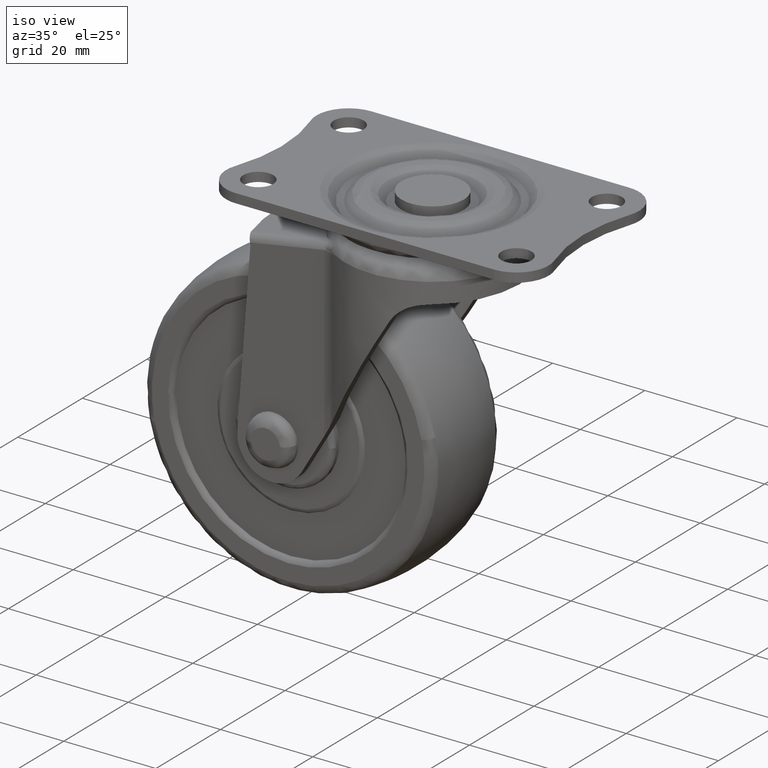
[diagram: clean part render]
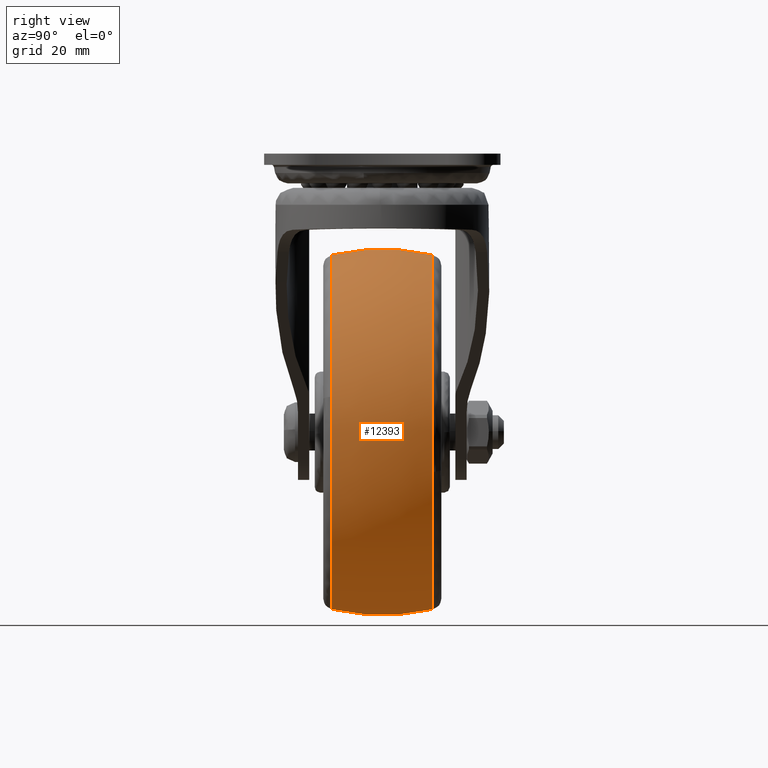
[diagram: tour spotlight — one face highlighted and labeled with its STEP entity id]
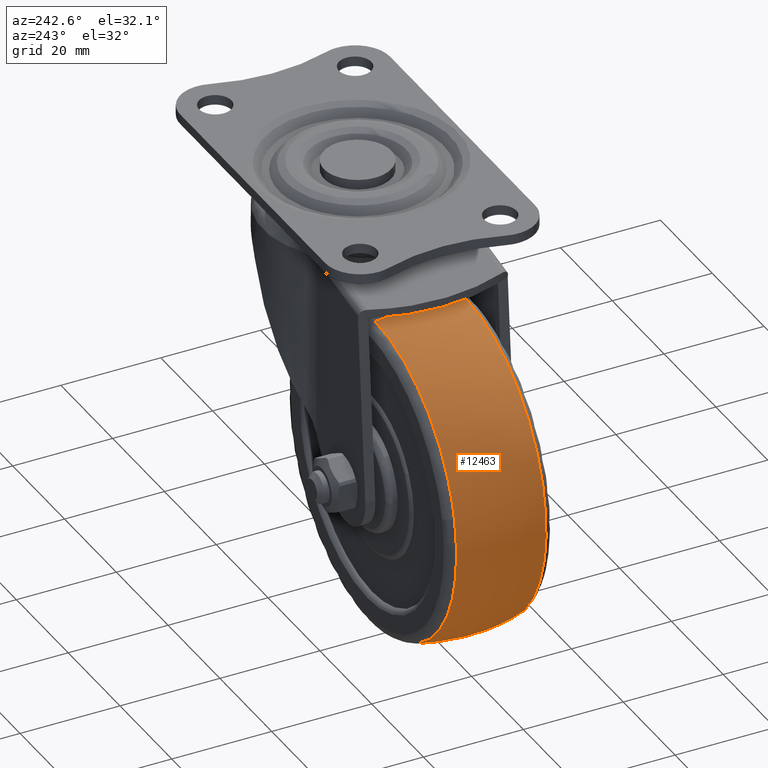
[diagram: tour spotlight — one face highlighted and labeled with its STEP entity id]
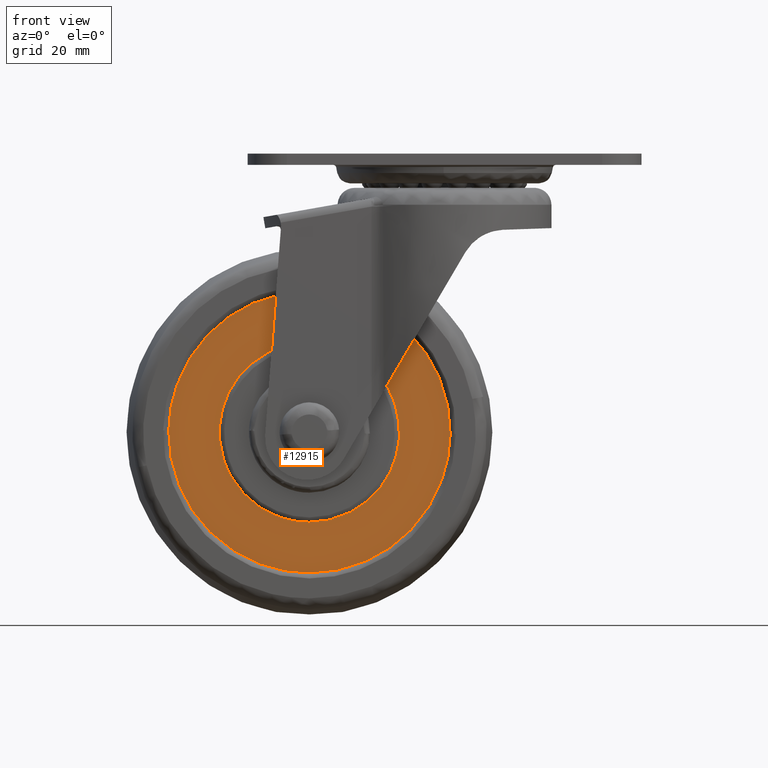
[diagram: tour spotlight — one face highlighted and labeled with its STEP entity id]
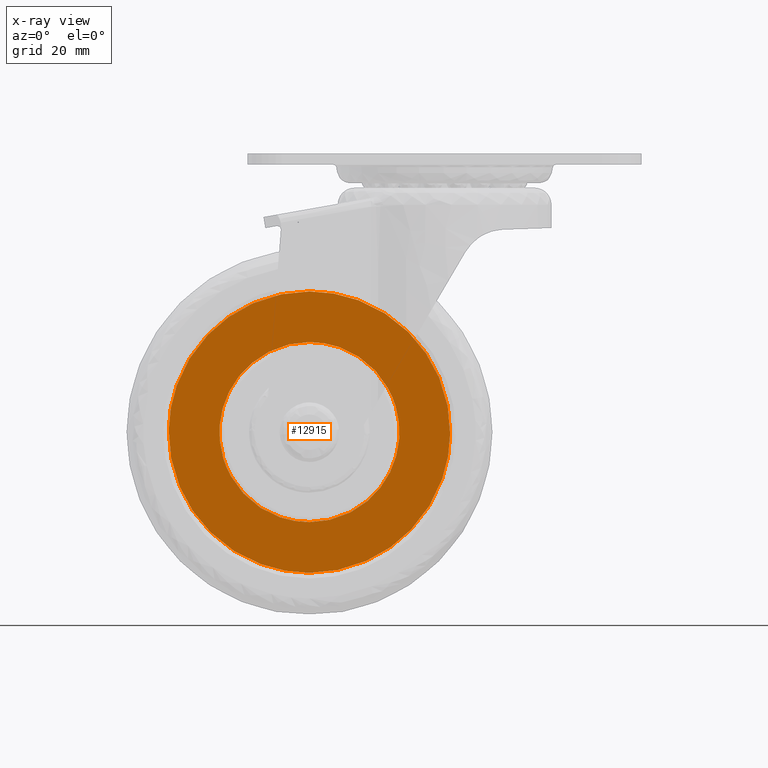
[diagram: x-ray of the same camera — body ghosted, this tour face saturated]
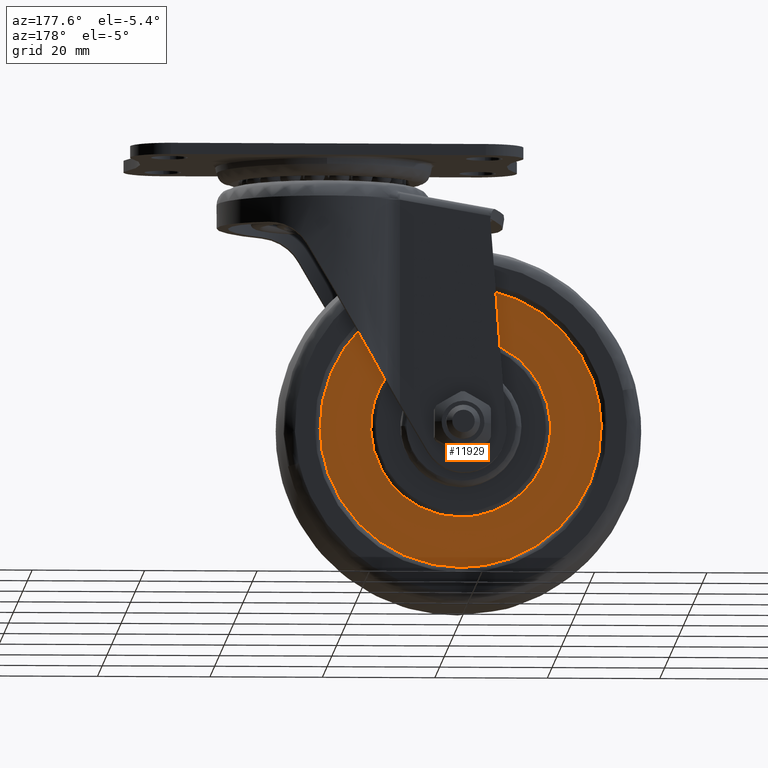
[diagram: tour spotlight — one face highlighted and labeled with its STEP entity id]
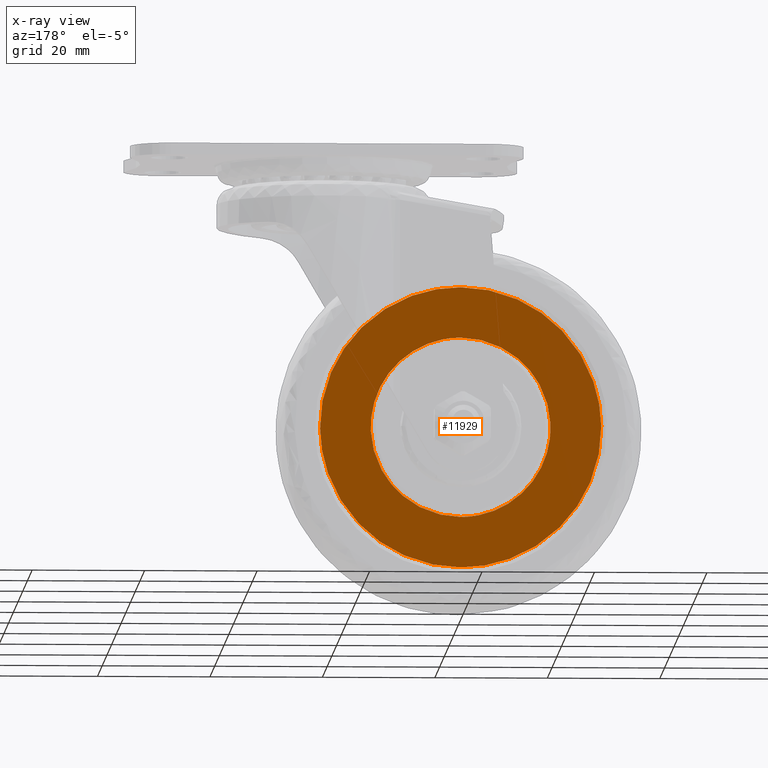
[diagram: x-ray of the same camera — body ghosted, this tour face saturated]
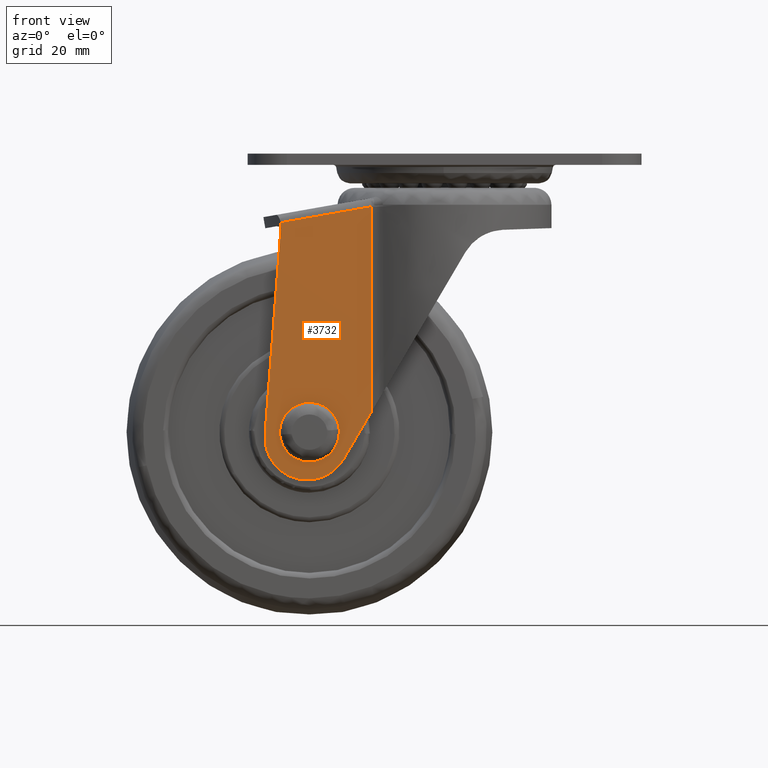
[diagram: tour spotlight — one face highlighted and labeled with its STEP entity id]
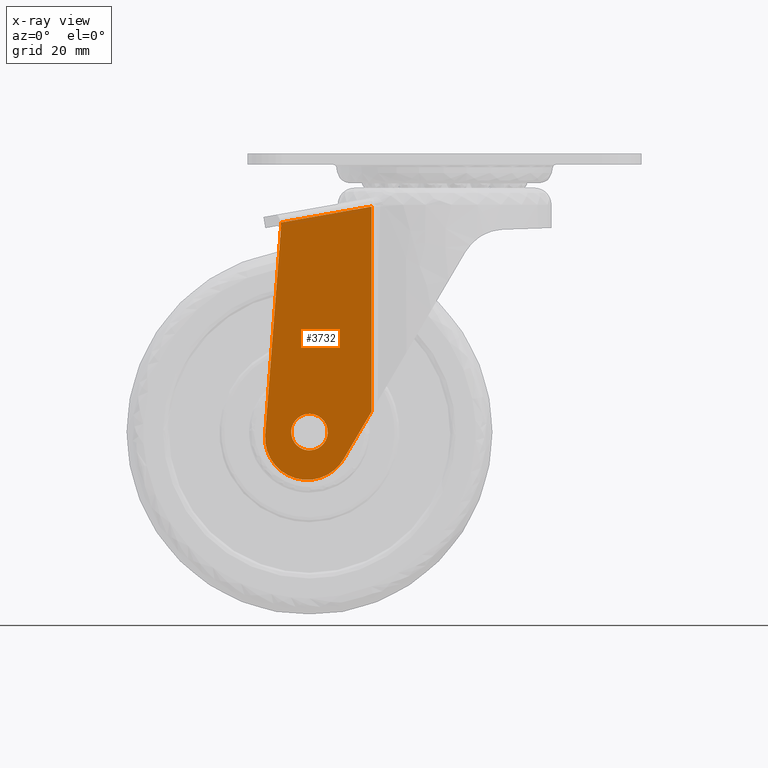
[diagram: x-ray of the same camera — body ghosted, this tour face saturated]
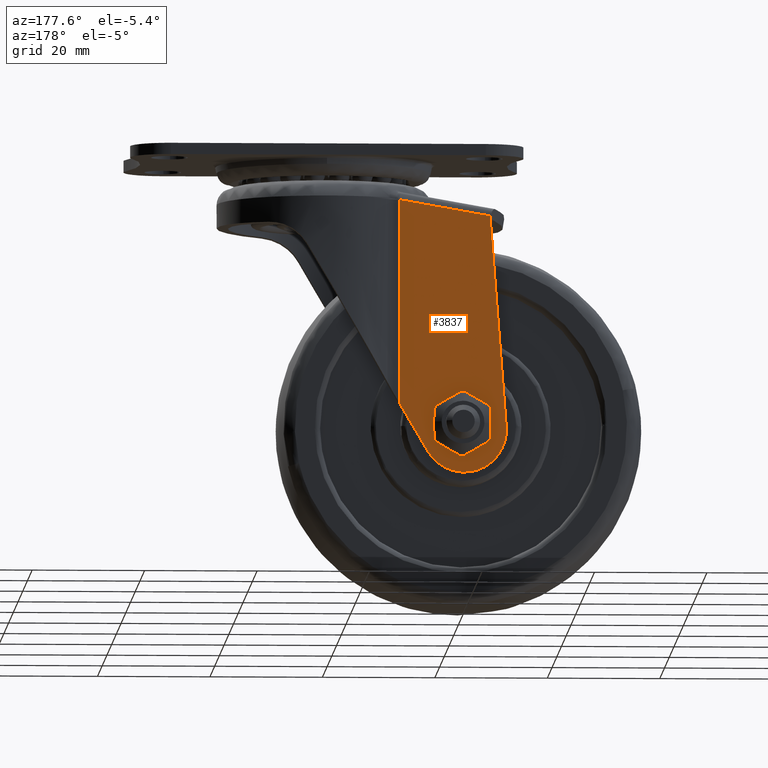
[diagram: tour spotlight — one face highlighted and labeled with its STEP entity id]
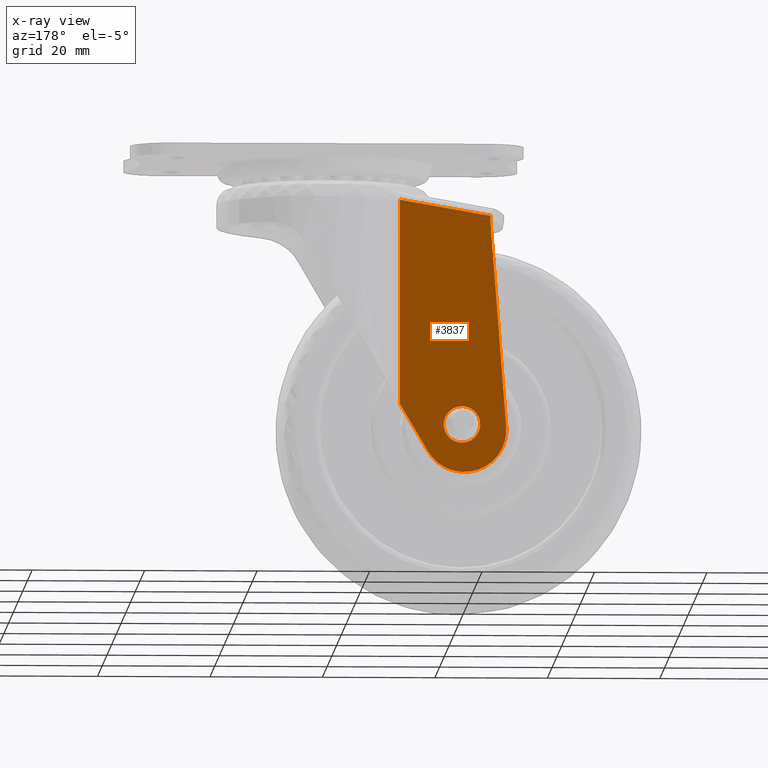
[diagram: x-ray of the same camera — body ghosted, this tour face saturated]
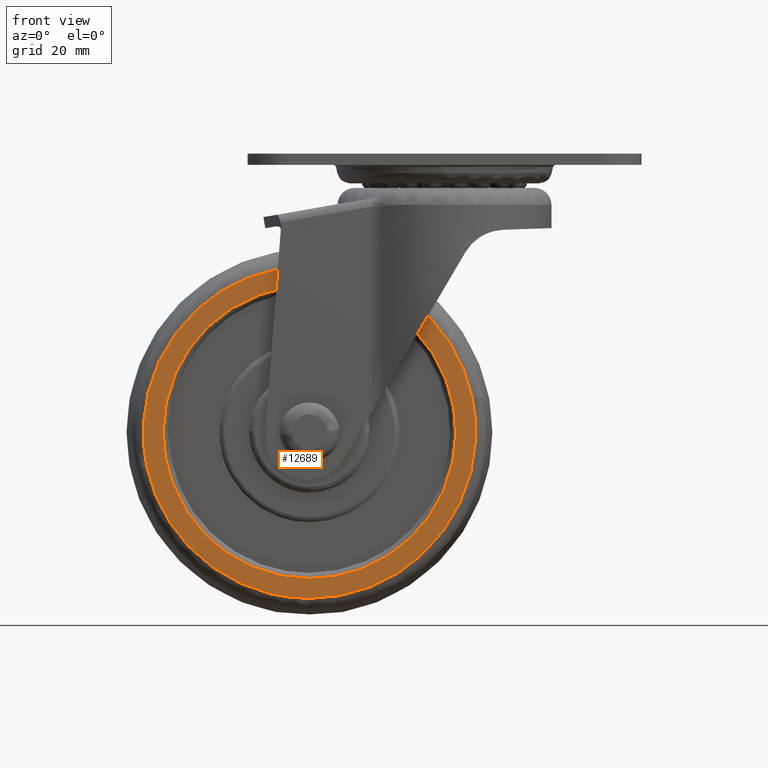
[diagram: tour spotlight — one face highlighted and labeled with its STEP entity id]
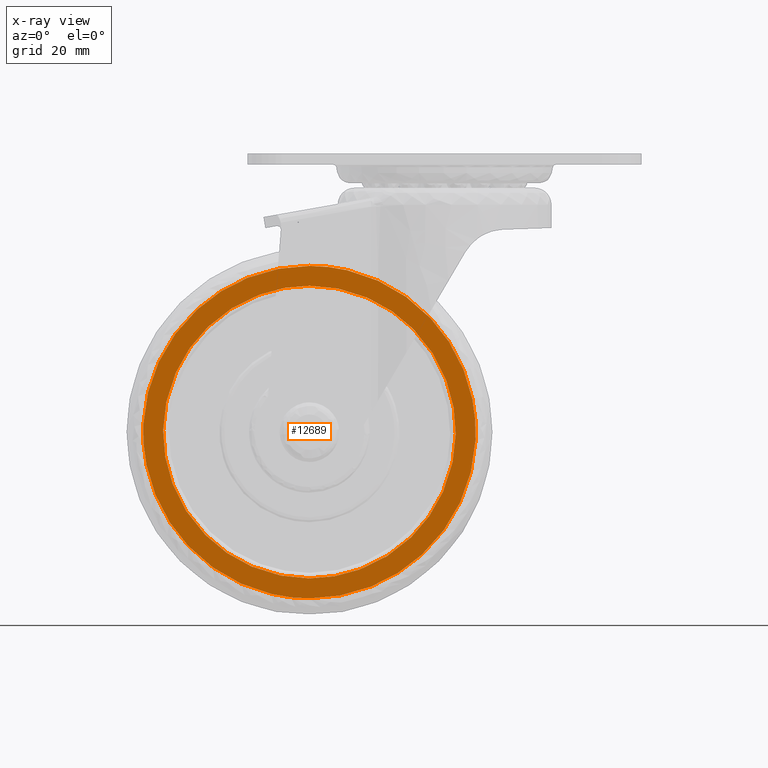
[diagram: x-ray of the same camera — body ghosted, this tour face saturated]
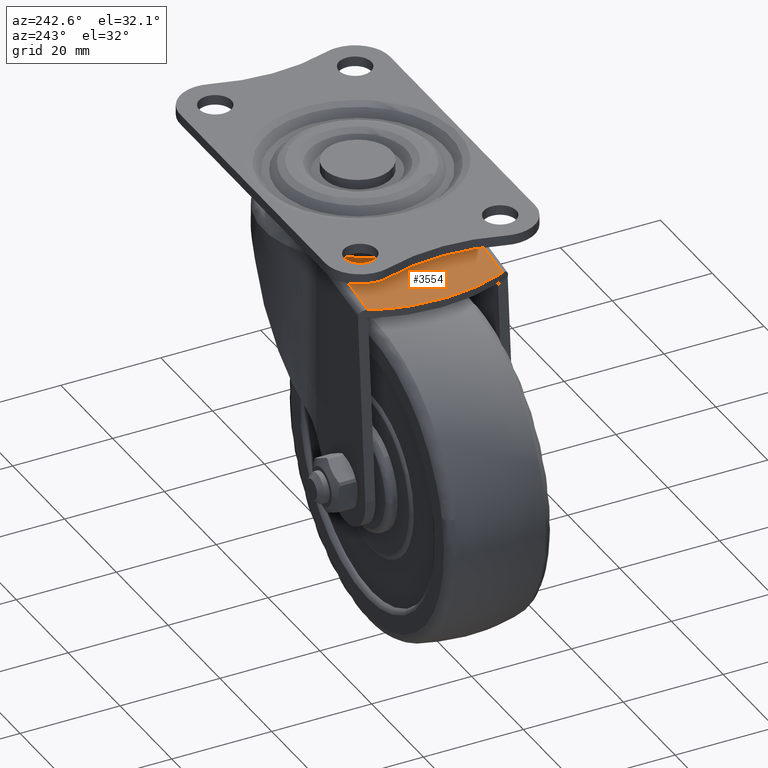
[diagram: tour spotlight — one face highlighted and labeled with its STEP entity id]
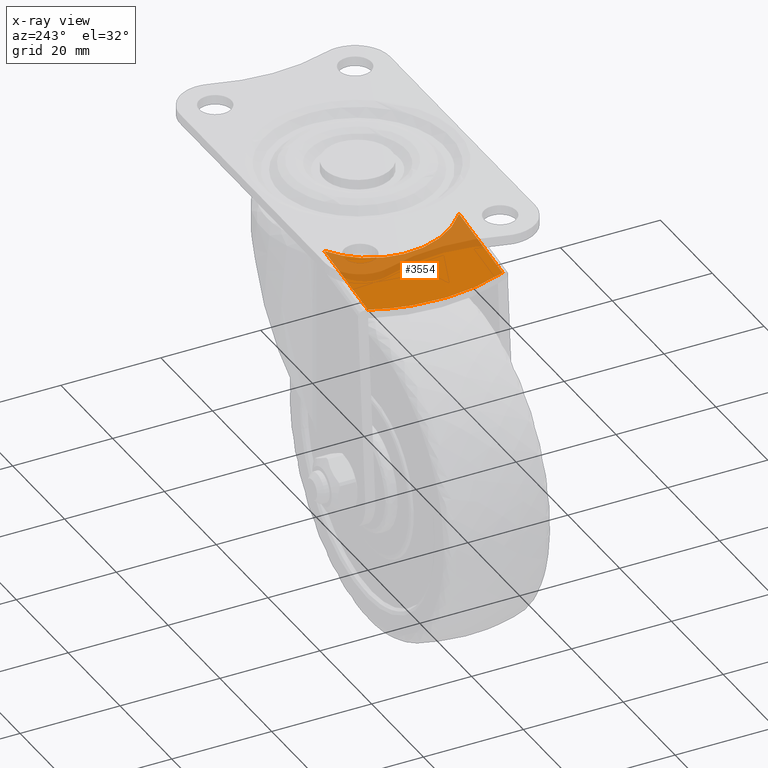
[diagram: x-ray of the same camera — body ghosted, this tour face saturated]
A machine part: a face-by-face anatomy tour. The part has 235 B-rep faces; the first image is the clean iso view, then the 8 largest visible faces are spotlighted one at a time (largest first), each with its STEP entity span.

Face 1 — right view, entity #12393. In plain terms, the highlighted face is a freeform B-spline surface patch.
Definition (entity closure, byte-faithful):
#11441=CARTESIAN_POINT('',(30.684409814533211,8.947357407441618,-7.061494280511459));
#11442=VERTEX_POINT('',#11441);
#11443=CARTESIAN_POINT('',(0.0,8.947357137756638,31.486469691760160));
#11444=VERTEX_POINT('',#11443);
#11445=CARTESIAN_POINT('',(30.684409814533211,8.947357407441618,-7.061494280511459));
#11446=CARTESIAN_POINT('',(31.486468435952492,8.947357395249242,-3.576296984196282));
#11447=CARTESIAN_POINT('',(31.486468371023548,8.947357379932761,-0.000000236269516));
#11448=CARTESIAN_POINT('',(31.486467799375397,8.947357245083243,31.486469587041547));
#11449=CARTESIAN_POINT('',(0.0,8.947357137756638,31.486469691760160));
#11457=(BOUNDED_CURVE()B_SPLINE_CURVE(2,(#11445,#11446,#11447,#11448,#11449),.UNSPECIFIED.,.F.,.U.)B_SPLINE_CURVE_WITH_KNOTS((3,2,3),(0.211647090279370,0.250000000000000,0.500000000000000),.UNSPECIFIED.)CURVE()GEOMETRIC_REPRESENTATION_ITEM()RATIONAL_B_SPLINE_CURVE((0.923920103083636,0.955066771284252,1.0,0.707106781186547,1.0))REPRESENTATION_ITEM(''));
#11458=EDGE_CURVE('',#11442,#11444,#11457,.T.);
#11561=CARTESIAN_POINT('',(0.0,8.947357137792846,-31.486469691751839));
#11562=VERTEX_POINT('',#11561);
#11563=CARTESIAN_POINT('',(0.0,8.947357137792846,-31.486469691751839));
#11564=CARTESIAN_POINT('',(25.063417952803807,8.947357272624249,-31.486469823306894));
#11565=CARTESIAN_POINT('',(30.684409814533211,8.947357407441618,-7.061494280511459));
#11573=(BOUNDED_CURVE()B_SPLINE_CURVE(2,(#11563,#11564,#11565),.UNSPECIFIED.,.F.,.U.)B_SPLINE_CURVE_WITH_KNOTS((3,3),(0.0,0.211647090279370),.UNSPECIFIED.)CURVE()GEOMETRIC_REPRESENTATION_ITEM()RATIONAL_B_SPLINE_CURVE((1.0,0.752040009902295,0.923920103083636))REPRESENTATION_ITEM(''));
#11574=EDGE_CURVE('',#11562,#11442,#11573,.T.);
#12304=CARTESIAN_POINT('',(0.0,-9.854009445458615,-31.267234849145769));
#12305=CARTESIAN_POINT('',(0.0,-5.004115969961841,-32.500000000000128));
#12306=CARTESIAN_POINT('',(0.0,0.0,-32.500000000000121));
#12307=CARTESIAN_POINT('',(0.0,5.004124267876119,-32.500000000000128));
#12308=CARTESIAN_POINT('',(0.0,9.854025281963990,-31.267230823756599));
#12309=CARTESIAN_POINT('',(31.267234849145762,-9.854009445458614,-31.267234849145762));
#12310=CARTESIAN_POINT('',(32.500000000000114,-5.004115969961840,-32.500000000000114));
#12311=CARTESIAN_POINT('',(32.500000000000121,0.0,-32.500000000000121));
#12312=CARTESIAN_POINT('',(32.500000000000114,5.004124267876118,-32.500000000000114));
#12313=CARTESIAN_POINT('',(31.267230823756599,9.854025281963988,-31.267230823756599));
#12314=CARTESIAN_POINT('',(31.267234849145769,-9.854009445458615,1.734723E-015));
#12315=CARTESIAN_POINT('',(32.500000000000128,-5.004115969961841,1.734723E-015));
#12316=CARTESIAN_POINT('',(32.500000000000121,0.0,1.734723E-015));
#12317=CARTESIAN_POINT('',(32.500000000000128,5.004124267876119,1.734723E-015));
#12318=CARTESIAN_POINT('',(31.267230823756599,9.854025281963990,1.734723E-015));
#12319=CARTESIAN_POINT('',(31.267234849145762,-9.854009445458614,31.267234849145762));
#12320=CARTESIAN_POINT('',(32.500000000000114,-5.004115969961840,32.500000000000114));
#12321=CARTESIAN_POINT('',(32.500000000000121,0.0,32.500000000000121));
#12322=CARTESIAN_POINT('',(32.500000000000114,5.004124267876118,32.500000000000114));
#12323=CARTESIAN_POINT('',(31.267230823756599,9.854025281963988,31.267230823756599));
#12324=CARTESIAN_POINT('',(0.0,-9.854009445458615,31.267234849145769));
#12325=CARTESIAN_POINT('',(0.0,-5.004115969961841,32.500000000000128));
#12326=CARTESIAN_POINT('',(0.0,0.0,32.500000000000121));
#12327=CARTESIAN_POINT('',(0.0,5.004124267876119,32.500000000000128));
#12328=CARTESIAN_POINT('',(0.0,9.854025281963990,31.267230823756599));
#12336=(BOUNDED_SURFACE()B_SPLINE_SURFACE(2,2,((#12304,#12309,#12314,#12319,#12324),(#12305,#12310,#12315,#12320,#12325),(#12306,#12311,#12316,#12321,#12326),(#12307,#12312,#12317,#12322,#12327),(#12308,#12313,#12318,#12323,#12328)),.UNSPECIFIED.,.F.,.F.,.U.)B_SPLINE_SURFACE_WITH_KNOTS((3,2,3),(3,2,3),(0.0,10.297791090859580,20.595598521813560),(0.0,53.847763108502562,107.695526217005100),.UNSPECIFIED.)GEOMETRIC_REPRESENTATION_ITEM()RATIONAL_B_SPLINE_SURFACE(((0.929998528183575,0.657608265772114,0.929998528183575,0.657608265772114,0.929998528183575),(0.956905249220080,0.676634190676522,0.956905249220080,0.676634190676522,0.956905249220080),(1.0,0.707106781186548,1.0,0.707106781186548,1.0),(0.956905180839173,0.676634142323919,0.956905180839173,0.676634142323919,0.956905180839173),(0.929998442794748,0.657608205393096,0.929998442794748,0.657608205393096,0.929998442794748)))REPRESENTATION_ITEM('')SURFACE());
#12337=CARTESIAN_POINT('',(0.0,-8.947340813187459,-31.486473438220870));
#12338=VERTEX_POINT('',#12337);
#12339=CARTESIAN_POINT('',(0.0,-8.947340813187459,-31.486473438220870));
#12340=CARTESIAN_POINT('',(0.0,-7.298259787109174,-31.864972144247119));
#12341=CARTESIAN_POINT('',(0.0,-3.580243403445423,-32.473194861810533));
#12342=CARTESIAN_POINT('',(0.0,2.452309316193328,-32.600803583658561));
#12343=CARTESIAN_POINT('',(0.0,6.748603087638868,-31.991250712525169));
#12344=CARTESIAN_POINT('',(0.0,8.947357137792846,-31.486469691751839));
#12345=B_SPLINE_CURVE_WITH_KNOTS('',3,(#12339,#12340,#12341,#12342,#12343,#12344),.UNSPECIFIED.,.F.,.U.,(4,1,1,4),(-0.000000012268078,5.075886702976668,11.279563162185189,18.047395873648011),.UNSPECIFIED.);
#12346=EDGE_CURVE('',#12338,#11562,#12345,.T.);
#12347=ORIENTED_EDGE('',*,*,#12346,.T.);
#12348=ORIENTED_EDGE('',*,*,#11574,.T.);
#12349=ORIENTED_EDGE('',*,*,#11458,.T.);
#12350=CARTESIAN_POINT('',(0.0,-8.947340760392361,31.486473209520131));
#12351=VERTEX_POINT('',#12350);
#12352=CARTESIAN_POINT('',(0.0,-8.947340760392361,31.486473209520131));
#12353=CARTESIAN_POINT('',(0.0,-6.748589609314041,31.991284219940191));
#12354=CARTESIAN_POINT('',(0.0,-2.965967779975784,32.527832237460480));
#12355=CARTESIAN_POINT('',(0.0,3.060007072013689,32.517201386556472));
#12356=CARTESIAN_POINT('',(0.0,6.794426772354380,31.980755134121150));
#12357=CARTESIAN_POINT('',(0.0,8.947357137756638,31.486469691760160));
#12358=B_SPLINE_CURVE_WITH_KNOTS('',3,(#12352,#12353,#12354,#12355,#12356,#12357),.UNSPECIFIED.,.F.,.U.,(4,1,1,4),(-0.000000012273944,6.767832679109748,11.420600227014400,18.047395821249339),.UNSPECIFIED.);
#12359=EDGE_CURVE('',#12351,#11444,#12358,.T.);
#12360=ORIENTED_EDGE('',*,*,#12359,.F.);
#12361=CARTESIAN_POINT('',(30.852176945583992,-8.947341497268493,6.288162357936491));
#12362=VERTEX_POINT('',#12361);
#12363=CARTESIAN_POINT('',(30.852176945583999,-8.947341497268493,6.288162357936491));
#12364=CARTESIAN_POINT('',(25.716362406243682,-8.947341118267520,31.486473520913208));
#12365=CARTESIAN_POINT('',(0.0,-8.947340760392361,31.486473209520131));
#12373=(BOUNDED_CURVE()B_SPLINE_CURVE(2,(#12363,#12364,#12365),.UNSPECIFIED.,.F.,.U.)B_SPLINE_CURVE_WITH_KNOTS((3,3),(0.284232955494026,0.500000000000000),.UNSPECIFIED.)CURVE()GEOMETRIC_REPRESENTATION_ITEM()RATIONAL_B_SPLINE_CURVE((0.930770881230835,0.747213183283120,1.0))REPRESENTATION_ITEM(''));
#12374=EDGE_CURVE('',#12362,#12351,#12373,.T.);
#12375=ORIENTED_EDGE('',*,*,#12374,.F.);
#12376=CARTESIAN_POINT('',(0.0,-8.947340813187459,-31.486473438220870));
#12377=CARTESIAN_POINT('',(31.486468134637938,-8.947341105479573,-31.486473183892677));
#12378=CARTESIAN_POINT('',(31.486469662454940,-8.947341436957302,0.000000451371005));
#12379=CARTESIAN_POINT('',(31.486469816567364,-8.947341470393790,3.176072296124555));
#12380=CARTESIAN_POINT('',(30.852176945583999,-8.947341497268493,6.288162357936491));
#12388=(BOUNDED_CURVE()B_SPLINE_CURVE(2,(#12376,#12377,#12378,#12379,#12380),.UNSPECIFIED.,.F.,.U.)B_SPLINE_CURVE_WITH_KNOTS((3,2,3),(0.0,0.250000000000000,0.284232955494026),.UNSPECIFIED.)CURVE()GEOMETRIC_REPRESENTATION_ITEM()RATIONAL_B_SPLINE_CURVE((1.0,0.707106781186548,1.0,0.959893597903428,0.930770881230835))REPRESENTATION_ITEM(''));
#12389=EDGE_CURVE('',#12338,#12362,#12388,.T.);
#12390=ORIENTED_EDGE('',*,*,#12389,.F.);
#12391=EDGE_LOOP('',(#12347,#12348,#12349,#12360,#12375,#12390));
#12392=FACE_OUTER_BOUND('',#12391,.T.);
#12393=ADVANCED_FACE('',(#12392),#12336,.T.);

Face 2 — auxiliary view, entity #12463. In plain terms, the highlighted face is a freeform B-spline surface patch.
Definition (entity closure, byte-faithful):
#11443=CARTESIAN_POINT('',(0.0,8.947357137756638,31.486469691760160));
#11444=VERTEX_POINT('',#11443);
#11507=CARTESIAN_POINT('',(-30.684409814535019,8.947357407433499,7.061494280511878));
#11508=VERTEX_POINT('',#11507);
#11522=CARTESIAN_POINT('',(0.0,8.947357137756638,31.486469691760160));
#11523=CARTESIAN_POINT('',(-25.063417952810415,8.947357272588041,31.486469823315204));
#11524=CARTESIAN_POINT('',(-30.684409814535027,8.947357407433499,7.061494280511878));
#11532=(BOUNDED_CURVE()B_SPLINE_CURVE(2,(#11522,#11523,#11524),.UNSPECIFIED.,.F.,.U.)B_SPLINE_CURVE_WITH_KNOTS((3,3),(0.500000000000000,0.711647090279412),.UNSPECIFIED.)CURVE()GEOMETRIC_REPRESENTATION_ITEM()RATIONAL_B_SPLINE_CURVE((1.0,0.752040009902246,0.923920103083704))REPRESENTATION_ITEM(''));
#11533=EDGE_CURVE('',#11444,#11508,#11532,.T.);
#11561=CARTESIAN_POINT('',(0.0,8.947357137792846,-31.486469691751839));
#11562=VERTEX_POINT('',#11561);
#11576=CARTESIAN_POINT('',(-30.684409814535027,8.947357407433499,7.061494280511878));
#11577=CARTESIAN_POINT('',(-31.486468435952492,8.947357395245128,3.576296984200489));
#11578=CARTESIAN_POINT('',(-31.486468371023548,8.947357379932759,0.000000236277821));
#11579=CARTESIAN_POINT('',(-31.486467799375397,8.947357245119450,-31.486469587033245));
#11580=CARTESIAN_POINT('',(0.0,8.947357137792846,-31.486469691751839));
#11588=(BOUNDED_CURVE()B_SPLINE_CURVE(2,(#11576,#11577,#11578,#11579,#11580),.UNSPECIFIED.,.F.,.U.)B_SPLINE_CURVE_WITH_KNOTS((3,2,3),(0.711647090279412,0.750000000000000,1.0),.UNSPECIFIED.)CURVE()GEOMETRIC_REPRESENTATION_ITEM()RATIONAL_B_SPLINE_CURVE((0.923920103083704,0.955066771284301,1.0,0.707106781186547,1.0))REPRESENTATION_ITEM(''));
#11589=EDGE_CURVE('',#11508,#11562,#11588,.T.);
#12337=CARTESIAN_POINT('',(0.0,-8.947340813187459,-31.486473438220870));
#12338=VERTEX_POINT('',#12337);
#12339=CARTESIAN_POINT('',(0.0,-8.947340813187459,-31.486473438220870));
#12340=CARTESIAN_POINT('',(0.0,-7.298259787109174,-31.864972144247119));
#12341=CARTESIAN_POINT('',(0.0,-3.580243403445423,-32.473194861810533));
#12342=CARTESIAN_POINT('',(0.0,2.452309316193328,-32.600803583658561));
#12343=CARTESIAN_POINT('',(0.0,6.748603087638868,-31.991250712525169));
#12344=CARTESIAN_POINT('',(0.0,8.947357137792846,-31.486469691751839));
#12345=B_SPLINE_CURVE_WITH_KNOTS('',3,(#12339,#12340,#12341,#12342,#12343,#12344),.UNSPECIFIED.,.F.,.U.,(4,1,1,4),(-0.000000012268078,5.075886702976668,11.279563162185189,18.047395873648011),.UNSPECIFIED.);
#12346=EDGE_CURVE('',#12338,#11562,#12345,.T.);
#12350=CARTESIAN_POINT('',(0.0,-8.947340760392361,31.486473209520131));
#12351=VERTEX_POINT('',#12350);
#12352=CARTESIAN_POINT('',(0.0,-8.947340760392361,31.486473209520131));
#12353=CARTESIAN_POINT('',(0.0,-6.748589609314041,31.991284219940191));
#12354=CARTESIAN_POINT('',(0.0,-2.965967779975784,32.527832237460480));
#12355=CARTESIAN_POINT('',(0.0,3.060007072013689,32.517201386556472));
#12356=CARTESIAN_POINT('',(0.0,6.794426772354380,31.980755134121150));
#12357=CARTESIAN_POINT('',(0.0,8.947357137756638,31.486469691760160));
#12358=B_SPLINE_CURVE_WITH_KNOTS('',3,(#12352,#12353,#12354,#12355,#12356,#12357),.UNSPECIFIED.,.F.,.U.,(4,1,1,4),(-0.000000012273944,6.767832679109748,11.420600227014400,18.047395821249339),.UNSPECIFIED.);
#12359=EDGE_CURVE('',#12351,#11444,#12358,.T.);
#12394=CARTESIAN_POINT('',(0.0,-9.854009445458615,31.267234849145769));
#12395=CARTESIAN_POINT('',(0.0,-5.004115969961841,32.500000000000128));
#12396=CARTESIAN_POINT('',(0.0,0.0,32.500000000000121));
#12397=CARTESIAN_POINT('',(0.0,5.004124267876119,32.500000000000128));
#12398=CARTESIAN_POINT('',(0.0,9.854025281963990,31.267230823756599));
#12399=CARTESIAN_POINT('',(-31.267234849145762,-9.854009445458614,31.267234849145762));
#12400=CARTESIAN_POINT('',(-32.500000000000114,-5.004115969961840,32.500000000000114));
#12401=CARTESIAN_POINT('',(-32.500000000000121,0.0,32.500000000000121));
#12402=CARTESIAN_POINT('',(-32.500000000000114,5.004124267876118,32.500000000000114));
#12403=CARTESIAN_POINT('',(-31.267230823756599,9.854025281963988,31.267230823756599));
#12404=CARTESIAN_POINT('',(-31.267234849145769,-9.854009445458615,1.734723E-015));
#12405=CARTESIAN_POINT('',(-32.500000000000128,-5.004115969961841,1.734723E-015));
#12406=CARTESIAN_POINT('',(-32.500000000000121,0.0,1.734723E-015));
#12407=CARTESIAN_POINT('',(-32.500000000000128,5.004124267876119,1.734723E-015));
#12408=CARTESIAN_POINT('',(-31.267230823756599,9.854025281963990,1.734723E-015));
#12409=CARTESIAN_POINT('',(-31.267234849145762,-9.854009445458614,-31.267234849145762));
#12410=CARTESIAN_POINT('',(-32.500000000000114,-5.004115969961840,-32.500000000000114));
#12411=CARTESIAN_POINT('',(-32.500000000000121,0.0,-32.500000000000121));
#12412=CARTESIAN_POINT('',(-32.500000000000114,5.004124267876118,-32.500000000000114));
#12413=CARTESIAN_POINT('',(-31.267230823756599,9.854025281963988,-31.267230823756599));
#12414=CARTESIAN_POINT('',(0.0,-9.854009445458615,-31.267234849145769));
#12415=CARTESIAN_POINT('',(0.0,-5.004115969961841,-32.500000000000128));
#12416=CARTESIAN_POINT('',(0.0,0.0,-32.500000000000121));
#12417=CARTESIAN_POINT('',(0.0,5.004124267876119,-32.500000000000128));
#12418=CARTESIAN_POINT('',(0.0,9.854025281963990,-31.267230823756599));
#12426=(BOUNDED_SURFACE()B_SPLINE_SURFACE(2,2,((#12394,#12399,#12404,#12409,#12414),(#12395,#12400,#12405,#12410,#12415),(#12396,#12401,#12406,#12411,#12416),(#12397,#12402,#12407,#12412,#12417),(#12398,#12403,#12408,#12413,#12418)),.UNSPECIFIED.,.F.,.F.,.U.)B_SPLINE_SURFACE_WITH_KNOTS((3,2,3),(3,2,3),(0.0,10.297791090859580,20.595598521813560),(0.0,53.847763108502562,107.695526217005100),.UNSPECIFIED.)GEOMETRIC_REPRESENTATION_ITEM()RATIONAL_B_SPLINE_SURFACE(((0.929998528183575,0.657608265772114,0.929998528183575,0.657608265772114,0.929998528183575),(0.956905249220080,0.676634190676522,0.956905249220080,0.676634190676522,0.956905249220080),(1.0,0.707106781186548,1.0,0.707106781186548,1.0),(0.956905180839173,0.676634142323919,0.956905180839173,0.676634142323919,0.956905180839173),(0.929998442794748,0.657608205393096,0.929998442794748,0.657608205393096,0.929998442794748)))REPRESENTATION_ITEM('')SURFACE());
#12427=ORIENTED_EDGE('',*,*,#12346,.F.);
#12428=CARTESIAN_POINT('',(-30.852176967954190,-8.947341502569913,-6.288162362495898));
#12429=VERTEX_POINT('',#12428);
#12430=CARTESIAN_POINT('',(-30.852176967954190,-8.947341502569913,-6.288162362495898));
#12431=CARTESIAN_POINT('',(-25.716362581841683,-8.947341168441479,-31.486473747332880));
#12432=CARTESIAN_POINT('',(0.0,-8.947340813187459,-31.486473438220870));
#12440=(BOUNDED_CURVE()B_SPLINE_CURVE(2,(#12430,#12431,#12432),.UNSPECIFIED.,.F.,.U.)B_SPLINE_CURVE_WITH_KNOTS((3,3),(0.784232954322983,1.0),.UNSPECIFIED.)CURVE()GEOMETRIC_REPRESENTATION_ITEM()RATIONAL_B_SPLINE_CURVE((0.930770883223300,0.747213181911157,1.0))REPRESENTATION_ITEM(''));
#12441=EDGE_CURVE('',#12429,#12338,#12440,.T.);
#12442=ORIENTED_EDGE('',*,*,#12441,.F.);
#12443=CARTESIAN_POINT('',(0.0,-8.947340760392361,31.486473209520131));
#12444=CARTESIAN_POINT('',(-31.486468125497165,-8.947341050543678,31.486472957054975));
#12445=CARTESIAN_POINT('',(-31.486469642122419,-8.947341432195360,-0.000000675927638));
#12446=CARTESIAN_POINT('',(-31.486469795105904,-8.947341470692942,-3.176072407264245));
#12447=CARTESIAN_POINT('',(-30.852176967954190,-8.947341502569913,-6.288162362495898));
#12455=(BOUNDED_CURVE()B_SPLINE_CURVE(2,(#12443,#12444,#12445,#12446,#12447),.UNSPECIFIED.,.F.,.U.)B_SPLINE_CURVE_WITH_KNOTS((3,2,3),(0.500000000000000,0.750000000000000,0.784232954322983),.UNSPECIFIED.)CURVE()GEOMETRIC_REPRESENTATION_ITEM()RATIONAL_B_SPLINE_CURVE((1.0,0.707106781186548,1.0,0.959893599275391,0.930770883223300))REPRESENTATION_ITEM(''));
#12456=EDGE_CURVE('',#12351,#12429,#12455,.T.);
#12457=ORIENTED_EDGE('',*,*,#12456,.F.);
#12458=ORIENTED_EDGE('',*,*,#12359,.T.);
#12459=ORIENTED_EDGE('',*,*,#11533,.T.);
#12460=ORIENTED_EDGE('',*,*,#11589,.T.);
#12461=EDGE_LOOP('',(#12427,#12442,#12457,#12458,#12459,#12460));
#12462=FACE_OUTER_BOUND('',#12461,.T.);
#12463=ADVANCED_FACE('',(#12462),#12426,.T.);

Face 3 — front view, entity #12915. An x-ray twin of the same camera follows (body ghosted, this face saturated) — the face is partly hidden behind the body. In plain terms, the highlighted face is a freeform B-spline surface patch.
Definition (entity closure, byte-faithful):
#12713=CARTESIAN_POINT('',(0.0,-9.500000000000000,-25.0));
#12714=VERTEX_POINT('',#12713);
#12715=CARTESIAN_POINT('',(24.998026105094290,-9.500000000657467,-0.314150997172180));
#12716=VERTEX_POINT('',#12715);
#12717=CARTESIAN_POINT('',(0.0,-9.500000000000000,-25.0));
#12718=CARTESIAN_POINT('',(24.687798247595584,-9.500000000328733,-25.000000000000007));
#12719=CARTESIAN_POINT('',(24.998026105094286,-9.500000000657467,-0.314150997172180));
#12727=(BOUNDED_CURVE()B_SPLINE_CURVE(2,(#12717,#12718,#12719),.UNSPECIFIED.,.F.,.U.)B_SPLINE_CURVE_WITH_KNOTS((3,3),(0.0,0.495568591842213),.UNSPECIFIED.)CURVE()GEOMETRIC_REPRESENTATION_ITEM()RATIONAL_B_SPLINE_CURVE((1.0,0.709702639984968,0.994854295642581))REPRESENTATION_ITEM(''));
#12728=EDGE_CURVE('',#12714,#12716,#12727,.T.);
#12730=CARTESIAN_POINT('',(-24.998026105094290,-9.500000000657465,0.314150997172187));
#12731=VERTEX_POINT('',#12730);
#12732=CARTESIAN_POINT('',(-24.998026105094290,-9.500000000657465,0.314150997172187));
#12733=CARTESIAN_POINT('',(-24.999999999999993,-9.500000000655426,0.157081699841435));
#12734=CARTESIAN_POINT('',(-25.0,-9.500000000653360,-1.184783E-015));
#12735=CARTESIAN_POINT('',(-25.000000000000004,-9.500000000324627,-25.000000000000004));
#12736=CARTESIAN_POINT('',(0.0,-9.500000000000000,-25.0));
#12744=(BOUNDED_CURVE()B_SPLINE_CURVE(2,(#12732,#12733,#12734,#12735,#12736),.UNSPECIFIED.,.F.,.U.)B_SPLINE_CURVE_WITH_KNOTS((3,2,3),(0.495568591842213,0.500000000000000,1.0),.UNSPECIFIED.)CURVE()GEOMETRIC_REPRESENTATION_ITEM()RATIONAL_B_SPLINE_CURVE((0.994854295642581,0.997404141201579,1.0,0.707106781186547,1.0))REPRESENTATION_ITEM(''));
#12745=EDGE_CURVE('',#12731,#12714,#12744,.T.);
#12801=CARTESIAN_POINT('',(0.0,-9.500000000000000,25.0));
#12802=VERTEX_POINT('',#12801);
#12803=CARTESIAN_POINT('',(24.998026105094286,-9.500000000657467,-0.314150997172180));
#12804=CARTESIAN_POINT('',(24.999999999999989,-9.500000000655426,-0.157081699841432));
#12805=CARTESIAN_POINT('',(24.999999999999989,-9.500000000653360,4.479696E-016));
#12806=CARTESIAN_POINT('',(24.999999999999993,-9.500000000324627,25.000000000000004));
#12807=CARTESIAN_POINT('',(0.0,-9.500000000000000,25.0));
#12815=(BOUNDED_CURVE()B_SPLINE_CURVE(2,(#12803,#12804,#12805,#12806,#12807),.UNSPECIFIED.,.F.,.U.)B_SPLINE_CURVE_WITH_KNOTS((3,2,3),(0.495568591842213,0.500000000000000,1.0),.UNSPECIFIED.)CURVE()GEOMETRIC_REPRESENTATION_ITEM()RATIONAL_B_SPLINE_CURVE((0.994854295642581,0.997404141201579,1.0,0.707106781186547,1.0))REPRESENTATION_ITEM(''));
#12816=EDGE_CURVE('',#12716,#12802,#12815,.T.);
#12822=CARTESIAN_POINT('',(0.0,-9.500000000000000,25.0));
#12823=CARTESIAN_POINT('',(-24.687798247595584,-9.500000000328733,25.000000000000007));
#12824=CARTESIAN_POINT('',(-24.998026105094286,-9.500000000657465,0.314150997172187));
#12832=(BOUNDED_CURVE()B_SPLINE_CURVE(2,(#12822,#12823,#12824),.UNSPECIFIED.,.F.,.U.)B_SPLINE_CURVE_WITH_KNOTS((3,3),(0.0,0.495568591842213),.UNSPECIFIED.)CURVE()GEOMETRIC_REPRESENTATION_ITEM()RATIONAL_B_SPLINE_CURVE((1.0,0.709702639984968,0.994854295642581))REPRESENTATION_ITEM(''));
#12833=EDGE_CURVE('',#12802,#12731,#12832,.T.);
#12838=CARTESIAN_POINT('',(-27.495328816091160,-9.500000000000000,-27.497499903090301));
#12839=CARTESIAN_POINT('',(-27.495328816091160,-9.500000000000000,27.497501244194801));
#12840=CARTESIAN_POINT('',(27.495330157089779,-9.500000000000000,-27.497499903090301));
#12841=CARTESIAN_POINT('',(27.495330157089779,-9.500000000000000,27.497501244194801));
#12842=B_SPLINE_SURFACE_WITH_KNOTS('',1,1,((#12838,#12840),(#12839,#12841)),.UNSPECIFIED.,.F.,.F.,.U.,(2,2),(2,2),(0.0,54.995001147285102),(0.0,54.990658973180942),.UNSPECIFIED.);
#12843=ORIENTED_EDGE('',*,*,#12728,.T.);
#12844=ORIENTED_EDGE('',*,*,#12816,.T.);
#12845=ORIENTED_EDGE('',*,*,#12833,.T.);
#12846=ORIENTED_EDGE('',*,*,#12745,.T.);
#12847=EDGE_LOOP('',(#12843,#12844,#12845,#12846));
#12848=FACE_OUTER_BOUND('',#12847,.T.);
#12849=CARTESIAN_POINT('',(0.0,-9.499999999999995,-15.999999999999989));
#12850=VERTEX_POINT('',#12849);
#12851=CARTESIAN_POINT('',(14.020906635576560,-9.500000485346567,7.708058649851756));
#12852=VERTEX_POINT('',#12851);
#12853=CARTESIAN_POINT('',(0.0,-9.499999999999995,-15.999999999999989));
#12854=CARTESIAN_POINT('',(15.999999927389720,-9.500000143516575,-16.000000039917843));
#12855=CARTESIAN_POINT('',(15.999999804612431,-9.500000386189861,-0.000000107415221));
#12856=CARTESIAN_POINT('',(15.999999773088577,-9.500000448497769,4.108101640663073));
#12857=CARTESIAN_POINT('',(14.020906635576560,-9.500000485346567,7.708058649851757));
#12865=(BOUNDED_CURVE()B_SPLINE_CURVE(2,(#12853,#12854,#12855,#12856,#12857),.UNSPECIFIED.,.F.,.U.)B_SPLINE_CURVE_WITH_KNOTS((3,2,3),(0.0,0.250000000000000,0.332050816094729),.UNSPECIFIED.)CURVE()GEOMETRIC_REPRESENTATION_ITEM()RATIONAL_B_SPLINE_CURVE((1.0,0.707106781186548,1.0,0.903871489470977,0.870842360852970))REPRESENTATION_ITEM(''));
#12866=EDGE_CURVE('',#12850,#12852,#12865,.T.);
#12867=ORIENTED_EDGE('',*,*,#12866,.F.);
#12868=CARTESIAN_POINT('',(-14.020906635576560,-9.500000485346567,-7.708058649851752));
#12869=VERTEX_POINT('',#12868);
#12870=CARTESIAN_POINT('',(-14.020906635576560,-9.500000485346567,-7.708058649851752));
#12871=CARTESIAN_POINT('',(-9.462373500215666,-9.500000242673281,-15.999999932502611));
#12872=CARTESIAN_POINT('',(0.0,-9.499999999999995,-15.999999999999989));
#12880=(BOUNDED_CURVE()B_SPLINE_CURVE(2,(#12870,#12871,#12872),.UNSPECIFIED.,.F.,.U.)B_SPLINE_CURVE_WITH_KNOTS((3,3),(0.832050816094729,1.0),.UNSPECIFIED.)CURVE()GEOMETRIC_REPRESENTATION_ITEM()RATIONAL_B_SPLINE_CURVE((0.870842360852970,0.803235291715571,1.0))REPRESENTATION_ITEM(''));
#12881=EDGE_CURVE('',#12869,#12850,#12880,.T.);
#12882=ORIENTED_EDGE('',*,*,#12881,.F.);
#12883=CARTESIAN_POINT('',(0.0,-9.500000000000000,16.0));
#12884=VERTEX_POINT('',#12883);
#12885=CARTESIAN_POINT('',(0.0,-9.500000000000000,16.0));
#12886=CARTESIAN_POINT('',(-15.999999927389720,-9.500000143516580,16.000000039917843));
#12887=CARTESIAN_POINT('',(-15.999999804612431,-9.500000386189864,0.000000107415232));
#12888=CARTESIAN_POINT('',(-15.999999773088579,-9.500000448497772,-4.108101640663069));
#12889=CARTESIAN_POINT('',(-14.020906635576560,-9.500000485346567,-7.708058649851752));
#12897=(BOUNDED_CURVE()B_SPLINE_CURVE(2,(#12885,#12886,#12887,#12888,#12889),.UNSPECIFIED.,.F.,.U.)B_SPLINE_CURVE_WITH_KNOTS((3,2,3),(0.500000000000000,0.750000000000000,0.832050816094729),.UNSPECIFIED.)CURVE()GEOMETRIC_REPRESENTATION_ITEM()RATIONAL_B_SPLINE_CURVE((1.0,0.707106781186548,1.0,0.903871489470977,0.870842360852970))REPRESENTATION_ITEM(''));
#12898=EDGE_CURVE('',#12884,#12869,#12897,.T.);
#12899=ORIENTED_EDGE('',*,*,#12898,.F.);
#12900=CARTESIAN_POINT('',(14.020906635576560,-9.500000485346567,7.708058649851757));
#12901=CARTESIAN_POINT('',(9.462373500215668,-9.500000242673282,15.999999932502622));
#12902=CARTESIAN_POINT('',(0.0,-9.500000000000000,16.0));
#12910=(BOUNDED_CURVE()B_SPLINE_CURVE(2,(#12900,#12901,#12902),.UNSPECIFIED.,.F.,.U.)B_SPLINE_CURVE_WITH_KNOTS((3,3),(0.332050816094729,0.500000000000000),.UNSPECIFIED.)CURVE()GEOMETRIC_REPRESENTATION_ITEM()RATIONAL_B_SPLINE_CURVE((0.870842360852970,0.803235291715571,1.0))REPRESENTATION_ITEM(''));
#12911=EDGE_CURVE('',#12852,#12884,#12910,.T.);
#12912=ORIENTED_EDGE('',*,*,#12911,.F.);
#12913=EDGE_LOOP('',(#12867,#12882,#12899,#12912));
#12914=FACE_BOUND('',#12913,.T.);
#12915=ADVANCED_FACE('',(#12848,#12914),#12842,.F.);

Face 4 — auxiliary view, entity #11929. An x-ray twin of the same camera follows (body ghosted, this face saturated) — the face is partly hidden behind the body. In plain terms, the highlighted face is a freeform B-spline surface patch.
Definition (entity closure, byte-faithful):
#11728=CARTESIAN_POINT('',(-24.998026105094290,9.500000002935762,0.314150997172092));
#11729=VERTEX_POINT('',#11728);
#11743=CARTESIAN_POINT('',(0.0,9.500000000000000,-25.0));
#11744=VERTEX_POINT('',#11743);
#11745=CARTESIAN_POINT('',(-24.998026105094286,9.500000002935762,0.314150997172092));
#11746=CARTESIAN_POINT('',(-25.0,9.500000002926653,0.157081699841391));
#11747=CARTESIAN_POINT('',(-25.0,9.500000002917432,6.615600E-015));
#11748=CARTESIAN_POINT('',(-25.000000000000004,9.500000001449550,-24.999999999999993));
#11749=CARTESIAN_POINT('',(0.0,9.500000000000000,-25.0));
#11757=(BOUNDED_CURVE()B_SPLINE_CURVE(2,(#11745,#11746,#11747,#11748,#11749),.UNSPECIFIED.,.F.,.U.)B_SPLINE_CURVE_WITH_KNOTS((3,2,3),(0.747784295921107,0.750000000000000,1.0),.UNSPECIFIED.)CURVE()GEOMETRIC_REPRESENTATION_ITEM()RATIONAL_B_SPLINE_CURVE((0.994854295642583,0.997404141201580,1.0,0.707106781186547,1.0))REPRESENTATION_ITEM(''));
#11758=EDGE_CURVE('',#11729,#11744,#11757,.T.);
#11760=CARTESIAN_POINT('',(24.998026105094290,9.500000002935762,-0.314150997172089));
#11761=VERTEX_POINT('',#11760);
#11762=CARTESIAN_POINT('',(0.0,9.500000000000000,-25.0));
#11763=CARTESIAN_POINT('',(24.687798247595680,9.500000001467880,-25.000000000000004));
#11764=CARTESIAN_POINT('',(24.998026105094286,9.500000002935762,-0.314150997172089));
#11772=(BOUNDED_CURVE()B_SPLINE_CURVE(2,(#11762,#11763,#11764),.UNSPECIFIED.,.F.,.U.)B_SPLINE_CURVE_WITH_KNOTS((3,3),(0.0,0.247784295921107),.UNSPECIFIED.)CURVE()GEOMETRIC_REPRESENTATION_ITEM()RATIONAL_B_SPLINE_CURVE((1.0,0.709702639984968,0.994854295642583))REPRESENTATION_ITEM(''));
#11773=EDGE_CURVE('',#11744,#11761,#11772,.T.);
#11818=CARTESIAN_POINT('',(0.0,9.500000000000000,25.0));
#11819=VERTEX_POINT('',#11818);
#11820=CARTESIAN_POINT('',(24.998026105094286,9.500000002935762,-0.314150997172089));
#11821=CARTESIAN_POINT('',(25.0,9.500000002926653,-0.157081699841388));
#11822=CARTESIAN_POINT('',(25.0,9.500000002917432,-3.060378E-015));
#11823=CARTESIAN_POINT('',(25.000000000000004,9.500000001449550,25.000000000000004));
#11824=CARTESIAN_POINT('',(0.0,9.500000000000000,25.0));
#11832=(BOUNDED_CURVE()B_SPLINE_CURVE(2,(#11820,#11821,#11822,#11823,#11824),.UNSPECIFIED.,.F.,.U.)B_SPLINE_CURVE_WITH_KNOTS((3,2,3),(0.247784295921107,0.250000000000000,0.500000000000000),.UNSPECIFIED.)CURVE()GEOMETRIC_REPRESENTATION_ITEM()RATIONAL_B_SPLINE_CURVE((0.994854295642583,0.997404141201580,1.0,0.707106781186547,1.0))REPRESENTATION_ITEM(''));
#11833=EDGE_CURVE('',#11761,#11819,#11832,.T.);
#11835=CARTESIAN_POINT('',(0.0,9.500000000000000,25.0));
#11836=CARTESIAN_POINT('',(-24.687798247595680,9.500000001467880,25.000000000000004));
#11837=CARTESIAN_POINT('',(-24.998026105094286,9.500000002935762,0.314150997172092));
#11845=(BOUNDED_CURVE()B_SPLINE_CURVE(2,(#11835,#11836,#11837),.UNSPECIFIED.,.F.,.U.)B_SPLINE_CURVE_WITH_KNOTS((3,3),(0.500000000000000,0.747784295921107),.UNSPECIFIED.)CURVE()GEOMETRIC_REPRESENTATION_ITEM()RATIONAL_B_SPLINE_CURVE((1.0,0.709702639984968,0.994854295642583))REPRESENTATION_ITEM(''));
#11846=EDGE_CURVE('',#11819,#11729,#11845,.T.);
#11852=CARTESIAN_POINT('',(-27.495328816091160,9.500000000000000,27.497499903090301));
#11853=CARTESIAN_POINT('',(-27.495328816091160,9.500000000000000,-27.497501244194801));
#11854=CARTESIAN_POINT('',(27.495330157089779,9.500000000000000,27.497499903090301));
#11855=CARTESIAN_POINT('',(27.495330157089779,9.500000000000000,-27.497501244194801));
#11856=B_SPLINE_SURFACE_WITH_KNOTS('',1,1,((#11852,#11854),(#11853,#11855)),.UNSPECIFIED.,.F.,.F.,.U.,(2,2),(2,2),(0.0,54.995001147285102),(0.0,54.990658973180942),.UNSPECIFIED.);
#11857=ORIENTED_EDGE('',*,*,#11758,.F.);
#11858=ORIENTED_EDGE('',*,*,#11846,.F.);
#11859=ORIENTED_EDGE('',*,*,#11833,.F.);
#11860=ORIENTED_EDGE('',*,*,#11773,.F.);
#11861=EDGE_LOOP('',(#11857,#11858,#11859,#11860));
#11862=FACE_OUTER_BOUND('',#11861,.T.);
#11863=CARTESIAN_POINT('',(0.0,9.500000000000000,16.0));
#11864=VERTEX_POINT('',#11863);
#11865=CARTESIAN_POINT('',(-14.020906553057880,9.500000648715831,7.708058604164695));
#11866=VERTEX_POINT('',#11865);
#11867=CARTESIAN_POINT('',(0.0,9.500000000000000,16.0));
#11868=CARTESIAN_POINT('',(-9.462373459078805,9.500000324357913,15.999999909782739));
#11869=CARTESIAN_POINT('',(-14.020906553057884,9.500000648715831,7.708058604164696));
#11877=(BOUNDED_CURVE()B_SPLINE_CURVE(2,(#11867,#11868,#11869),.UNSPECIFIED.,.F.,.U.)B_SPLINE_CURVE_WITH_KNOTS((3,3),(0.500000000000000,0.667949183907986),.UNSPECIFIED.)CURVE()GEOMETRIC_REPRESENTATION_ITEM()RATIONAL_B_SPLINE_CURVE((1.0,0.803235291712390,0.870842360855156))REPRESENTATION_ITEM(''));
#11878=EDGE_CURVE('',#11864,#11866,#11877,.T.);
#11879=ORIENTED_EDGE('',*,*,#11878,.T.);
#11880=CARTESIAN_POINT('',(0.0,9.499999999999995,-15.999999999999989));
#11881=VERTEX_POINT('',#11880);
#11882=CARTESIAN_POINT('',(-14.020906553057884,9.500000648715831,7.708058604164696));
#11883=CARTESIAN_POINT('',(-15.999999696709315,9.500000599463609,4.108101598522810));
#11884=CARTESIAN_POINT('',(-15.999999738844210,9.500000516182650,-0.000000143571605));
#11885=CARTESIAN_POINT('',(-15.999999902948815,9.500000191824734,-16.000000053354331));
#11886=CARTESIAN_POINT('',(0.0,9.499999999999995,-15.999999999999989));
#11894=(BOUNDED_CURVE()B_SPLINE_CURVE(2,(#11882,#11883,#11884,#11885,#11886),.UNSPECIFIED.,.F.,.U.)B_SPLINE_CURVE_WITH_KNOTS((3,2,3),(0.667949183907986,0.750000000000000,1.0),.UNSPECIFIED.)CURVE()GEOMETRIC_REPRESENTATION_ITEM()RATIONAL_B_SPLINE_CURVE((0.870842360855156,0.903871489474158,1.0,0.707106781186548,1.0))REPRESENTATION_ITEM(''));
#11895=EDGE_CURVE('',#11866,#11881,#11894,.T.);
#11896=ORIENTED_EDGE('',*,*,#11895,.T.);
#11897=CARTESIAN_POINT('',(14.020906553057880,9.500000648715831,-7.708058604164691));
#11898=VERTEX_POINT('',#11897);
#11899=CARTESIAN_POINT('',(0.0,9.499999999999995,-15.999999999999989));
#11900=CARTESIAN_POINT('',(9.462373459078805,9.500000324357909,-15.999999909782725));
#11901=CARTESIAN_POINT('',(14.020906553057884,9.500000648715831,-7.708058604164691));
#11909=(BOUNDED_CURVE()B_SPLINE_CURVE(2,(#11899,#11900,#11901),.UNSPECIFIED.,.F.,.U.)B_SPLINE_CURVE_WITH_KNOTS((3,3),(0.0,0.167949183907986),.UNSPECIFIED.)CURVE()GEOMETRIC_REPRESENTATION_ITEM()RATIONAL_B_SPLINE_CURVE((1.0,0.803235291712390,0.870842360855156))REPRESENTATION_ITEM(''));
#11910=EDGE_CURVE('',#11881,#11898,#11909,.T.);
#11911=ORIENTED_EDGE('',*,*,#11910,.T.);
#11912=CARTESIAN_POINT('',(14.020906553057884,9.500000648715831,-7.708058604164691));
#11913=CARTESIAN_POINT('',(15.999999696709315,9.500000599463609,-4.108101598522807));
#11914=CARTESIAN_POINT('',(15.999999738844210,9.500000516182650,0.000000143571612));
#11915=CARTESIAN_POINT('',(15.999999902948815,9.500000191824736,16.000000053354345));
#11916=CARTESIAN_POINT('',(0.0,9.500000000000000,16.0));
#11924=(BOUNDED_CURVE()B_SPLINE_CURVE(2,(#11912,#11913,#11914,#11915,#11916),.UNSPECIFIED.,.F.,.U.)B_SPLINE_CURVE_WITH_KNOTS((3,2,3),(0.167949183907986,0.250000000000000,0.500000000000000),.UNSPECIFIED.)CURVE()GEOMETRIC_REPRESENTATION_ITEM()RATIONAL_B_SPLINE_CURVE((0.870842360855156,0.903871489474158,1.0,0.707106781186548,1.0))REPRESENTATION_ITEM(''));
#11925=EDGE_CURVE('',#11898,#11864,#11924,.T.);
#11926=ORIENTED_EDGE('',*,*,#11925,.T.);
#11927=EDGE_LOOP('',(#11879,#11896,#11911,#11926));
#11928=FACE_BOUND('',#11927,.T.);
#11929=ADVANCED_FACE('',(#11862,#11928),#11856,.F.);

Face 5 — front view, entity #3732. An x-ray twin of the same camera follows (body ghosted, this face saturated) — the face is partly hidden behind the body. In plain terms, the highlighted face is a freeform B-spline surface patch.
Definition (entity closure, byte-faithful):
#1617=CARTESIAN_POINT('',(3.243938094868405,-14.989471000000020,-0.198407753531808));
#1618=VERTEX_POINT('',#1617);
#1624=CARTESIAN_POINT('',(0.0,-14.989471000000020,3.250000000000000));
#1625=VERTEX_POINT('',#1624);
#1626=CARTESIAN_POINT('',(3.243938094868407,-14.989471000000023,-0.198407753531808));
#1627=CARTESIAN_POINT('',(3.250000000000000,-14.989471000000021,-0.099296480742236));
#1628=CARTESIAN_POINT('',(3.250000000000000,-14.989471000000020,0.0));
#1629=CARTESIAN_POINT('',(3.250000000000000,-14.989471000000016,3.250000000000000));
#1630=CARTESIAN_POINT('',(0.0,-14.989471000000020,3.250000000000000));
#1638=(BOUNDED_CURVE()B_SPLINE_CURVE(2,(#1626,#1627,#1628,#1629,#1630),.UNSPECIFIED.,.F.,.U.)B_SPLINE_CURVE_WITH_KNOTS((3,2,3),(0.239332962239653,0.250000000000000,0.500000000000000),.UNSPECIFIED.)CURVE()GEOMETRIC_REPRESENTATION_ITEM()RATIONAL_B_SPLINE_CURVE((0.976072041668240,0.987502787900670,1.0,0.707106781186547,1.0))REPRESENTATION_ITEM(''));
#1639=EDGE_CURVE('',#1618,#1625,#1638,.T.);
#1641=CARTESIAN_POINT('',(-3.243938094868406,-14.989471000000020,0.198407753531807));
#1642=VERTEX_POINT('',#1641);
#1643=CARTESIAN_POINT('',(0.0,-14.989471000000020,3.250000000000000));
#1644=CARTESIAN_POINT('',(-3.057294717402413,-14.989471000000025,3.250000000000000));
#1645=CARTESIAN_POINT('',(-3.243938094868406,-14.989471000000025,0.198407753531808));
#1653=(BOUNDED_CURVE()B_SPLINE_CURVE(2,(#1643,#1644,#1645),.UNSPECIFIED.,.F.,.U.)B_SPLINE_CURVE_WITH_KNOTS((3,3),(0.500000000000000,0.739332962239653),.UNSPECIFIED.)CURVE()GEOMETRIC_REPRESENTATION_ITEM()RATIONAL_B_SPLINE_CURVE((1.0,0.719603993285878,0.976072041668240))REPRESENTATION_ITEM(''));
#1654=EDGE_CURVE('',#1625,#1642,#1653,.T.);
#1728=CARTESIAN_POINT('',(0.0,-14.989471000000020,-3.250000000000000));
#1729=VERTEX_POINT('',#1728);
#1730=CARTESIAN_POINT('',(-3.243938094868406,-14.989471000000020,0.198407753531806));
#1731=CARTESIAN_POINT('',(-3.250000000000000,-14.989471000000020,0.099296480742235));
#1732=CARTESIAN_POINT('',(-3.250000000000000,-14.989471000000020,0.0));
#1733=CARTESIAN_POINT('',(-3.250000000000000,-14.989471000000016,-3.250000000000000));
#1734=CARTESIAN_POINT('',(0.0,-14.989471000000020,-3.250000000000000));
#1742=(BOUNDED_CURVE()B_SPLINE_CURVE(2,(#1730,#1731,#1732,#1733,#1734),.UNSPECIFIED.,.F.,.U.)B_SPLINE_CURVE_WITH_KNOTS((3,2,3),(0.739332962239653,0.750000000000000,1.0),.UNSPECIFIED.)CURVE()GEOMETRIC_REPRESENTATION_ITEM()RATIONAL_B_SPLINE_CURVE((0.976072041668240,0.987502787900670,1.0,0.707106781186547,1.0))REPRESENTATION_ITEM(''));
#1743=EDGE_CURVE('',#1642,#1729,#1742,.T.);
#1745=CARTESIAN_POINT('',(0.0,-14.989471000000020,-3.250000000000000));
#1746=CARTESIAN_POINT('',(3.057294717402414,-14.989471000000028,-3.250000000000000));
#1747=CARTESIAN_POINT('',(3.243938094868407,-14.989471000000023,-0.198407753531808));
#1755=(BOUNDED_CURVE()B_SPLINE_CURVE(2,(#1745,#1746,#1747),.UNSPECIFIED.,.F.,.U.)B_SPLINE_CURVE_WITH_KNOTS((3,3),(0.0,0.239332962239653),.UNSPECIFIED.)CURVE()GEOMETRIC_REPRESENTATION_ITEM()RATIONAL_B_SPLINE_CURVE((1.0,0.719603993285878,0.976072041668240))REPRESENTATION_ITEM(''));
#1756=EDGE_CURVE('',#1729,#1618,#1755,.T.);
#2666=CARTESIAN_POINT('',(-5.031762965749939,-14.989471000000020,36.729751717695351));
#2667=VERTEX_POINT('',#2666);
#2853=CARTESIAN_POINT('',(11.023097783363079,-14.989471000000000,3.622461012426360));
#2854=VERTEX_POINT('',#2853);
#2877=CARTESIAN_POINT('',(11.023097783362960,-14.989471000000000,40.068369961891797));
#2878=VERTEX_POINT('',#2877);
#2892=CARTESIAN_POINT('',(11.023097783363079,-14.989471000000000,3.622461012426360));
#2893=CARTESIAN_POINT('',(11.023097783362950,-14.989471000000000,40.068369961893012));
#2894=QUASI_UNIFORM_CURVE('',1,(#2892,#2893),.UNSPECIFIED.,.F.,.U.);
#2895=EDGE_CURVE('',#2854,#2878,#2894,.T.);
#2905=CARTESIAN_POINT('',(-7.878093303800609,-14.989471000000020,-0.427155822215347));
#2906=VERTEX_POINT('',#2905);
#2907=CARTESIAN_POINT('',(-5.031762965749939,-14.989471000000020,36.729751717695351));
#2908=CARTESIAN_POINT('',(-7.878093303800609,-14.989471000000020,-0.427155822215347));
#2909=QUASI_UNIFORM_CURVE('',1,(#2907,#2908),.UNSPECIFIED.,.F.,.U.);
#2910=EDGE_CURVE('',#2667,#2906,#2909,.T.);
#3039=CARTESIAN_POINT('',(6.063617999999909,-14.989471000000020,-4.804157000000120));
#3040=VERTEX_POINT('',#3039);
#3041=CARTESIAN_POINT('',(6.063617999999909,-14.989471000000020,-4.804157000000120));
#3042=CARTESIAN_POINT('',(11.023097783363079,-14.989471000000000,3.622461012426360));
#3043=QUASI_UNIFORM_CURVE('',1,(#3041,#3042),.UNSPECIFIED.,.F.,.U.);
#3044=EDGE_CURVE('',#3040,#2854,#3043,.T.);
#3179=CARTESIAN_POINT('',(-7.878093303800609,-14.989471000000020,-0.427155822215347));
#3180=CARTESIAN_POINT('',(-7.910167630606594,-14.989471000000041,-0.845610859440322));
#3181=CARTESIAN_POINT('',(-7.902901954562178,-14.989471000000011,-1.819570670825968));
#3182=CARTESIAN_POINT('',(-7.628173512068211,-14.989471000000000,-3.164102632491232));
#3183=CARTESIAN_POINT('',(-7.167349241993206,-14.989471000000069,-4.283366081956285));
#3184=CARTESIAN_POINT('',(-6.656883899006643,-14.989471000000000,-5.171562651595235));
#3185=CARTESIAN_POINT('',(-5.927145807475308,-14.989471000000030,-6.136669586858969));
#3186=CARTESIAN_POINT('',(-4.927529543283953,-14.989471000000030,-7.039131515808452));
#3187=CARTESIAN_POINT('',(-3.821779518276970,-14.989470999999940,-7.702264345535448));
#3188=CARTESIAN_POINT('',(-2.756018453640784,-14.989471000000250,-8.151141524091310));
#3189=CARTESIAN_POINT('',(-1.402446541768726,-14.989470999999790,-8.491905511622706));
#3190=CARTESIAN_POINT('',(0.183118096663174,-14.989471000000259,-8.541674454512073));
#3191=CARTESIAN_POINT('',(1.838622380001566,-14.989470999999790,-8.216061543193215));
#3192=CARTESIAN_POINT('',(3.027633002911459,-14.989471000000149,-7.707636059029350));
#3193=CARTESIAN_POINT('',(4.139125436847362,-14.989470999999890,-7.008576546818966));
#3194=CARTESIAN_POINT('',(5.136156471770328,-14.989471000000600,-6.145369348927086));
#3195=CARTESIAN_POINT('',(5.784293363933161,-14.989470999999160,-5.278950900116279));
#3196=CARTESIAN_POINT('',(6.063617999999909,-14.989471000000020,-4.804157000000120));
#3197=B_SPLINE_CURVE_WITH_KNOTS('',3,(#3179,#3180,#3181,#3182,#3183,#3184,#3185,#3186,#3187,#3188,#3189,#3190,#3191,#3192,#3193,#3194,#3195,#3196),.UNSPECIFIED.,.F.,.U.,(4,1,1,1,1,1,1,1,1,1,1,1,1,1,1,4),(8.432544E-009,1.259058303681552,2.911664075627787,4.092108747762294,4.879053013070948,5.980782208530084,7.712087466818979,8.892515640381454,9.836849986147907,11.174554101809830,13.063257782481919,14.558454784913620,16.211049906057561,16.919318347574240,18.493182486920311,20.145761777675268),.UNSPECIFIED.);
#3198=EDGE_CURVE('',#2906,#3040,#3197,.T.);
#3703=CARTESIAN_POINT('',(-8.844537115424181,-14.989471000000000,42.494122534976519));
#3704=CARTESIAN_POINT('',(-8.844537115424181,-14.989471000000000,-10.921000874940511));
#3705=CARTESIAN_POINT('',(11.968275038564149,-14.989471000000000,42.494122534976519));
#3706=CARTESIAN_POINT('',(11.968275038564149,-14.989471000000000,-10.921000874940511));
#3707=B_SPLINE_SURFACE_WITH_KNOTS('',1,1,((#3703,#3705),(#3704,#3706)),.UNSPECIFIED.,.F.,.F.,.U.,(2,2),(2,2),(0.0,53.415123409917030),(0.0,20.812812153988329),.UNSPECIFIED.);
#3708=ORIENTED_EDGE('',*,*,#3044,.T.);
#3709=ORIENTED_EDGE('',*,*,#2895,.T.);
#3710=CARTESIAN_POINT('',(-5.118587997674800,-14.989471000000000,37.222155320005299));
#3711=VERTEX_POINT('',#3710);
#3712=CARTESIAN_POINT('',(11.023097783362960,-14.989471000000000,40.068369961891797));
#3713=CARTESIAN_POINT('',(-5.118587997674800,-14.989471000000000,37.222155320005299));
#3714=QUASI_UNIFORM_CURVE('',1,(#3712,#3713),.UNSPECIFIED.,.F.,.U.);
#3715=EDGE_CURVE('',#2878,#3711,#3714,.T.);
#3716=ORIENTED_EDGE('',*,*,#3715,.T.);
#3717=CARTESIAN_POINT('',(-5.031762965749939,-14.989471000000020,36.729751717695351));
#3718=CARTESIAN_POINT('',(-5.118587997674800,-14.989471000000000,37.222155320005299));
#3719=QUASI_UNIFORM_CURVE('',1,(#3717,#3718),.UNSPECIFIED.,.F.,.U.);
#3720=EDGE_CURVE('',#2667,#3711,#3719,.T.);
#3721=ORIENTED_EDGE('',*,*,#3720,.F.);
#3722=ORIENTED_EDGE('',*,*,#2910,.T.);
#3723=ORIENTED_EDGE('',*,*,#3198,.T.);
#3724=EDGE_LOOP('',(#3708,#3709,#3716,#3721,#3722,#3723));
#3725=FACE_OUTER_BOUND('',#3724,.T.);
#3726=ORIENTED_EDGE('',*,*,#1654,.F.);
#3727=ORIENTED_EDGE('',*,*,#1639,.F.);
#3728=ORIENTED_EDGE('',*,*,#1756,.F.);
#3729=ORIENTED_EDGE('',*,*,#1743,.F.);
#3730=EDGE_LOOP('',(#3726,#3727,#3728,#3729));
#3731=FACE_BOUND('',#3730,.T.);
#3732=ADVANCED_FACE('',(#3725,#3731),#3707,.T.);

Face 6 — auxiliary view, entity #3837. An x-ray twin of the same camera follows (body ghosted, this face saturated) — the face is partly hidden behind the body. In plain terms, the highlighted face is a freeform B-spline surface patch.
Definition (entity closure, byte-faithful):
#1450=CARTESIAN_POINT('',(-3.239981316076865,14.989471000000020,-0.254992296889075));
#1451=VERTEX_POINT('',#1450);
#1457=CARTESIAN_POINT('',(0.0,14.989471000000020,3.250000000000000));
#1458=VERTEX_POINT('',#1457);
#1459=CARTESIAN_POINT('',(-3.239981316076874,14.989471000000030,-0.254992296889075));
#1460=CARTESIAN_POINT('',(-3.250000000000000,14.989471000000018,-0.127692966208792));
#1461=CARTESIAN_POINT('',(-3.250000000000000,14.989471000000020,0.0));
#1462=CARTESIAN_POINT('',(-3.250000000000000,14.989471000000016,3.250000000000000));
#1463=CARTESIAN_POINT('',(0.0,14.989471000000020,3.250000000000000));
#1471=(BOUNDED_CURVE()B_SPLINE_CURVE(2,(#1459,#1460,#1461,#1462,#1463),.UNSPECIFIED.,.F.,.U.)B_SPLINE_CURVE_WITH_KNOTS((3,2,3),(0.736331288158200,0.750000000000000,1.0),.UNSPECIFIED.)CURVE()GEOMETRIC_REPRESENTATION_ITEM()RATIONAL_B_SPLINE_CURVE((0.969723330138347,0.983986107966486,1.0,0.707106781186547,1.0))REPRESENTATION_ITEM(''));
#1472=EDGE_CURVE('',#1451,#1458,#1471,.T.);
#1474=CARTESIAN_POINT('',(3.239981316076865,14.989471000000020,0.254992296889075));
#1475=VERTEX_POINT('',#1474);
#1476=CARTESIAN_POINT('',(0.0,14.989471000000020,3.250000000000000));
#1477=CARTESIAN_POINT('',(3.004268878592370,14.989471000000018,3.250000000000000));
#1478=CARTESIAN_POINT('',(3.239981316076874,14.989471000000018,0.254992296889076));
#1486=(BOUNDED_CURVE()B_SPLINE_CURVE(2,(#1476,#1477,#1478),.UNSPECIFIED.,.F.,.U.)B_SPLINE_CURVE_WITH_KNOTS((3,3),(0.0,0.236331288158200),.UNSPECIFIED.)CURVE()GEOMETRIC_REPRESENTATION_ITEM()RATIONAL_B_SPLINE_CURVE((1.0,0.723120673220061,0.969723330138347))REPRESENTATION_ITEM(''));
#1487=EDGE_CURVE('',#1458,#1475,#1486,.T.);
#1533=CARTESIAN_POINT('',(0.0,14.989471000000020,-3.250000000000000));
#1534=VERTEX_POINT('',#1533);
#1535=CARTESIAN_POINT('',(3.239981316076874,14.989471000000018,0.254992296889076));
#1536=CARTESIAN_POINT('',(3.250000000000000,14.989471000000020,0.127692966208792));
#1537=CARTESIAN_POINT('',(3.250000000000000,14.989471000000020,0.0));
#1538=CARTESIAN_POINT('',(3.250000000000000,14.989471000000016,-3.250000000000000));
#1539=CARTESIAN_POINT('',(0.0,14.989471000000020,-3.250000000000000));
#1547=(BOUNDED_CURVE()B_SPLINE_CURVE(2,(#1535,#1536,#1537,#1538,#1539),.UNSPECIFIED.,.F.,.U.)B_SPLINE_CURVE_WITH_KNOTS((3,2,3),(0.236331288158200,0.250000000000000,0.500000000000000),.UNSPECIFIED.)CURVE()GEOMETRIC_REPRESENTATION_ITEM()RATIONAL_B_SPLINE_CURVE((0.969723330138347,0.983986107966486,1.0,0.707106781186547,1.0))REPRESENTATION_ITEM(''));
#1548=EDGE_CURVE('',#1475,#1534,#1547,.T.);
#1550=CARTESIAN_POINT('',(0.0,14.989471000000020,-3.250000000000000));
#1551=CARTESIAN_POINT('',(-3.004268878592371,14.989471000000020,-3.250000000000000));
#1552=CARTESIAN_POINT('',(-3.239981316076874,14.989471000000030,-0.254992296889075));
#1560=(BOUNDED_CURVE()B_SPLINE_CURVE(2,(#1550,#1551,#1552),.UNSPECIFIED.,.F.,.U.)B_SPLINE_CURVE_WITH_KNOTS((3,3),(0.500000000000000,0.736331288158200),.UNSPECIFIED.)CURVE()GEOMETRIC_REPRESENTATION_ITEM()RATIONAL_B_SPLINE_CURVE((1.0,0.723120673220061,0.969723330138347))REPRESENTATION_ITEM(''));
#1561=EDGE_CURVE('',#1534,#1451,#1560,.T.);
#2966=CARTESIAN_POINT('',(-5.031762965749939,14.989473845400401,36.729751717695351));
#2967=VERTEX_POINT('',#2966);
#2975=CARTESIAN_POINT('',(-7.878093303800609,14.989471000000020,-0.427155822215347));
#2976=VERTEX_POINT('',#2975);
#2977=CARTESIAN_POINT('',(-7.878093303800609,14.989471000000020,-0.427155822215347));
#2978=CARTESIAN_POINT('',(-5.031762965749939,14.989473845400401,36.729751717695351));
#2979=QUASI_UNIFORM_CURVE('',1,(#2977,#2978),.UNSPECIFIED.,.F.,.U.);
#2980=EDGE_CURVE('',#2976,#2967,#2979,.T.);
#3082=CARTESIAN_POINT('',(6.063617999999909,14.989471000000020,-4.804157000000120));
#3083=VERTEX_POINT('',#3082);
#3089=CARTESIAN_POINT('',(11.023097783363021,14.989471000000000,3.622461012426025));
#3090=VERTEX_POINT('',#3089);
#3091=CARTESIAN_POINT('',(11.023097783363021,14.989471000000000,3.622461012426025));
#3092=CARTESIAN_POINT('',(6.063617999999909,14.989471000000020,-4.804157000000120));
#3093=QUASI_UNIFORM_CURVE('',1,(#3091,#3092),.UNSPECIFIED.,.F.,.U.);
#3094=EDGE_CURVE('',#3090,#3083,#3093,.T.);
#3245=CARTESIAN_POINT('',(6.063617999999909,14.989471000000020,-4.804157000000120));
#3246=CARTESIAN_POINT('',(5.850768014143510,14.989471000000030,-5.165861220134334));
#3247=CARTESIAN_POINT('',(5.348912959686397,14.989471000000050,-5.874898530994526));
#3248=CARTESIAN_POINT('',(4.283692257326844,14.989471000000011,-6.932637511715395));
#3249=CARTESIAN_POINT('',(3.079140327296178,14.989471000000020,-7.699121916752432));
#3250=CARTESIAN_POINT('',(1.879082386207792,14.989470999999890,-8.167915776076697));
#3251=CARTESIAN_POINT('',(0.832711911030413,14.989471000000140,-8.425578953949177));
#3252=CARTESIAN_POINT('',(-0.346570906101640,14.989470999999931,-8.537401881433020));
#3253=CARTESIAN_POINT('',(-1.580519462064505,14.989470999999959,-8.440170250281724));
#3254=CARTESIAN_POINT('',(-2.602094674261875,14.989471000000281,-8.188775491618516));
#3255=CARTESIAN_POINT('',(-3.731877306763475,14.989471000000091,-7.761186602131171));
#3256=CARTESIAN_POINT('',(-4.917515446035965,14.989470999999369,-7.066853473515125));
#3257=CARTESIAN_POINT('',(-6.069586606271547,14.989471000000931,-5.981795882815315));
#3258=CARTESIAN_POINT('',(-6.974098977925415,14.989470999999220,-4.718346184409863));
#3259=CARTESIAN_POINT('',(-7.551252607010871,14.989471000000560,-3.414440725511549));
#3260=CARTESIAN_POINT('',(-7.888051565609281,14.989470999999501,-1.925910738063761));
#3261=CARTESIAN_POINT('',(-7.920274525254621,14.989471000000419,-0.976404511082741));
#3262=CARTESIAN_POINT('',(-7.878093303800609,14.989471000000020,-0.427155822215347));
#3263=B_SPLINE_CURVE_WITH_KNOTS('',3,(#3245,#3246,#3247,#3248,#3249,#3250,#3251,#3252,#3253,#3254,#3255,#3256,#3257,#3258,#3259,#3260,#3261,#3262),.UNSPECIFIED.,.F.,.U.,(4,1,1,1,1,1,1,1,1,1,1,1,1,1,1,4),(0.000000186892187,1.259058460075604,2.596882300342713,4.485573387065553,5.508614713114694,6.452946163673440,7.712087510042775,9.049857895628909,10.151534533479239,10.859774741793160,12.669764150871760,14.243671597384321,15.581495246404151,17.312773313167650,18.493182341076491,20.145761604977000),.UNSPECIFIED.);
#3264=EDGE_CURVE('',#3083,#2976,#3263,.T.);
#3802=CARTESIAN_POINT('',(-8.844764290047213,14.989471000000000,-10.921040736573589));
#3803=CARTESIAN_POINT('',(-8.844764290047213,14.989471000000000,42.494963951456697));
#3804=CARTESIAN_POINT('',(11.973039262665919,14.989471000000000,-10.921040736573589));
#3805=CARTESIAN_POINT('',(11.973039262665919,14.989471000000000,42.494963951456697));
#3806=B_SPLINE_SURFACE_WITH_KNOTS('',1,1,((#3802,#3804),(#3803,#3805)),.UNSPECIFIED.,.F.,.F.,.U.,(2,2),(2,2),(0.0,53.416004688030277),(0.0,20.817803552713130),.UNSPECIFIED.);
#3807=CARTESIAN_POINT('',(-5.118587997674790,14.989471000000000,37.222155320005299));
#3808=VERTEX_POINT('',#3807);
#3809=CARTESIAN_POINT('',(11.027635331871281,14.989471000000000,40.069170054098898));
#3810=VERTEX_POINT('',#3809);
#3811=CARTESIAN_POINT('',(-5.118587997674790,14.989471000000000,37.222155320005299));
#3812=CARTESIAN_POINT('',(11.027635331871281,14.989471000000000,40.069170054098898));
#3813=QUASI_UNIFORM_CURVE('',1,(#3811,#3812),.UNSPECIFIED.,.F.,.U.);
#3814=EDGE_CURVE('',#3808,#3810,#3813,.T.);
#3815=ORIENTED_EDGE('',*,*,#3814,.T.);
#3816=CARTESIAN_POINT('',(11.027635331871281,14.989471000000000,40.069170054098898));
#3817=CARTESIAN_POINT('',(11.023097783362990,14.989471000000000,3.622461012426026));
#3818=QUASI_UNIFORM_CURVE('',1,(#3816,#3817),.UNSPECIFIED.,.F.,.U.);
#3819=EDGE_CURVE('',#3810,#3090,#3818,.T.);
#3820=ORIENTED_EDGE('',*,*,#3819,.T.);
#3821=ORIENTED_EDGE('',*,*,#3094,.T.);
#3822=ORIENTED_EDGE('',*,*,#3264,.T.);
#3823=ORIENTED_EDGE('',*,*,#2980,.T.);
#3824=CARTESIAN_POINT('',(-5.118587997674790,14.989471000000000,37.222155320005299));
#3825=CARTESIAN_POINT('',(-5.031762965749939,14.989473845400401,36.729751717695351));
#3826=QUASI_UNIFORM_CURVE('',1,(#3824,#3825),.UNSPECIFIED.,.F.,.U.);
#3827=EDGE_CURVE('',#3808,#2967,#3826,.T.);
#3828=ORIENTED_EDGE('',*,*,#3827,.F.);
#3829=EDGE_LOOP('',(#3815,#3820,#3821,#3822,#3823,#3828));
#3830=FACE_OUTER_BOUND('',#3829,.T.);
#3831=ORIENTED_EDGE('',*,*,#1561,.F.);
#3832=ORIENTED_EDGE('',*,*,#1548,.F.);
#3833=ORIENTED_EDGE('',*,*,#1487,.F.);
#3834=ORIENTED_EDGE('',*,*,#1472,.F.);
#3835=EDGE_LOOP('',(#3831,#3832,#3833,#3834));
#3836=FACE_BOUND('',#3835,.T.);
#3837=ADVANCED_FACE('',(#3830,#3836),#3806,.T.);

Face 7 — front view, entity #12689. An x-ray twin of the same camera follows (body ghosted, this face saturated) — the face is partly hidden behind the body. In plain terms, the highlighted face is a freeform B-spline surface patch.
Definition (entity closure, byte-faithful):
#12487=CARTESIAN_POINT('',(-28.942121500042209,-10.499999999999231,-5.898862803304346));
#12488=VERTEX_POINT('',#12487);
#12489=CARTESIAN_POINT('',(0.0,-10.499999999999240,-29.537145745329148));
#12490=VERTEX_POINT('',#12489);
#12491=CARTESIAN_POINT('',(-28.942121500042216,-10.499999999999231,-5.898862803304346));
#12492=CARTESIAN_POINT('',(-24.124265002747400,-10.499999999999234,-29.537145746198988));
#12493=CARTESIAN_POINT('',(0.0,-10.499999999999240,-29.537145745329148));
#12501=(BOUNDED_CURVE()B_SPLINE_CURVE(2,(#12491,#12492,#12493),.UNSPECIFIED.,.F.,.U.)B_SPLINE_CURVE_WITH_KNOTS((3,3),(0.784232961492789,1.0),.UNSPECIFIED.)CURVE()GEOMETRIC_REPRESENTATION_ITEM()RATIONAL_B_SPLINE_CURVE((0.930770871024281,0.747213190311107,1.0))REPRESENTATION_ITEM(''));
#12502=EDGE_CURVE('',#12488,#12490,#12501,.T.);
#12519=CARTESIAN_POINT('',(28.942121500042209,-10.499999999999231,5.898862803304356));
#12520=VERTEX_POINT('',#12519);
#12534=CARTESIAN_POINT('',(0.0,-10.499999999999240,-29.537145745329148));
#12535=CARTESIAN_POINT('',(29.537145748814826,-10.499999999999238,-29.537145744618716));
#12536=CARTESIAN_POINT('',(29.537145753082591,-10.499999999999231,1.580275E-009));
#12537=CARTESIAN_POINT('',(29.537145753513080,-10.499999999999236,2.979441751440255));
#12538=CARTESIAN_POINT('',(28.942121500042205,-10.499999999999231,5.898862803304356));
#12546=(BOUNDED_CURVE()B_SPLINE_CURVE(2,(#12534,#12535,#12536,#12537,#12538),.UNSPECIFIED.,.F.,.U.)B_SPLINE_CURVE_WITH_KNOTS((3,2,3),(0.0,0.250000000000000,0.284232961492789),.UNSPECIFIED.)CURVE()GEOMETRIC_REPRESENTATION_ITEM()RATIONAL_B_SPLINE_CURVE((1.0,0.707106781186548,1.0,0.959893590875440,0.930770871024281))REPRESENTATION_ITEM(''));
#12547=EDGE_CURVE('',#12490,#12520,#12546,.T.);
#12575=CARTESIAN_POINT('',(0.0,-10.499999999999240,29.537145745329148));
#12576=VERTEX_POINT('',#12575);
#12577=CARTESIAN_POINT('',(0.0,-10.499999999999240,29.537145745329148));
#12578=CARTESIAN_POINT('',(-29.537145748814826,-10.499999999999234,29.537145744618716));
#12579=CARTESIAN_POINT('',(-29.537145753082580,-10.499999999999231,-1.580273E-009));
#12580=CARTESIAN_POINT('',(-29.537145753513080,-10.499999999999227,-2.979441751440250));
#12581=CARTESIAN_POINT('',(-28.942121500042216,-10.499999999999231,-5.898862803304346));
#12589=(BOUNDED_CURVE()B_SPLINE_CURVE(2,(#12577,#12578,#12579,#12580,#12581),.UNSPECIFIED.,.F.,.U.)B_SPLINE_CURVE_WITH_KNOTS((3,2,3),(0.500000000000000,0.750000000000000,0.784232961492789),.UNSPECIFIED.)CURVE()GEOMETRIC_REPRESENTATION_ITEM()RATIONAL_B_SPLINE_CURVE((1.0,0.707106781186548,1.0,0.959893590875440,0.930770871024281))REPRESENTATION_ITEM(''));
#12590=EDGE_CURVE('',#12576,#12488,#12589,.T.);
#12592=CARTESIAN_POINT('',(28.942121500042205,-10.499999999999231,5.898862803304356));
#12593=CARTESIAN_POINT('',(24.124265002747400,-10.499999999999238,29.537145746198988));
#12594=CARTESIAN_POINT('',(0.0,-10.499999999999240,29.537145745329148));
#12602=(BOUNDED_CURVE()B_SPLINE_CURVE(2,(#12592,#12593,#12594),.UNSPECIFIED.,.F.,.U.)B_SPLINE_CURVE_WITH_KNOTS((3,3),(0.284232961492789,0.500000000000000),.UNSPECIFIED.)CURVE()GEOMETRIC_REPRESENTATION_ITEM()RATIONAL_B_SPLINE_CURVE((0.930770871024281,0.747213190311107,1.0))REPRESENTATION_ITEM(''));
#12603=EDGE_CURVE('',#12520,#12576,#12602,.T.);
#12612=CARTESIAN_POINT('',(-32.478646606625162,-10.499999999999620,-32.487906490790103));
#12613=CARTESIAN_POINT('',(-32.478646606625162,-10.499999999999620,32.487908075286072));
#12614=CARTESIAN_POINT('',(32.478648190669503,-10.499999999999620,-32.487906490790103));
#12615=CARTESIAN_POINT('',(32.478648190669503,-10.499999999999620,32.487908075286072));
#12616=B_SPLINE_SURFACE_WITH_KNOTS('',1,1,((#12612,#12614),(#12613,#12615)),.UNSPECIFIED.,.F.,.F.,.U.,(2,2),(2,2),(0.0,64.975814566076167),(0.0,64.957294797294651),.UNSPECIFIED.);
#12617=ORIENTED_EDGE('',*,*,#12547,.T.);
#12618=ORIENTED_EDGE('',*,*,#12603,.T.);
#12619=ORIENTED_EDGE('',*,*,#12590,.T.);
#12620=ORIENTED_EDGE('',*,*,#12502,.T.);
#12621=EDGE_LOOP('',(#12617,#12618,#12619,#12620));
#12622=FACE_OUTER_BOUND('',#12621,.T.);
#12623=CARTESIAN_POINT('',(0.0,-10.499999999999620,-26.0));
#12624=VERTEX_POINT('',#12623);
#12625=CARTESIAN_POINT('',(-25.997947143757798,-10.499999999999620,0.326717037216589));
#12626=VERTEX_POINT('',#12625);
#12627=CARTESIAN_POINT('',(0.0,-10.499999999999620,-26.0));
#12628=CARTESIAN_POINT('',(-25.999999997265881,-10.499999999999622,-26.000000000034358));
#12629=CARTESIAN_POINT('',(-25.999999994497170,-10.499999999999620,-6.915484E-011));
#12630=CARTESIAN_POINT('',(-25.999999994479769,-10.499999999999616,0.163364967879285));
#12631=CARTESIAN_POINT('',(-25.997947143757798,-10.499999999999620,0.326717037216589));
#12639=(BOUNDED_CURVE()B_SPLINE_CURVE(2,(#12627,#12628,#12629,#12630,#12631),.UNSPECIFIED.,.F.,.U.)B_SPLINE_CURVE_WITH_KNOTS((3,2,3),(0.500000000000000,0.750000000000000,0.752215704080430),.UNSPECIFIED.)CURVE()GEOMETRIC_REPRESENTATION_ITEM()RATIONAL_B_SPLINE_CURVE((1.0,0.707106781186547,1.0,0.997404141199779,0.994854295639045))REPRESENTATION_ITEM(''));
#12640=EDGE_CURVE('',#12624,#12626,#12639,.T.);
#12641=ORIENTED_EDGE('',*,*,#12640,.T.);
#12642=CARTESIAN_POINT('',(0.0,-10.499999999999620,26.0));
#12643=VERTEX_POINT('',#12642);
#12644=CARTESIAN_POINT('',(-25.997947143757798,-10.499999999999620,0.326717037216589));
#12645=CARTESIAN_POINT('',(-25.675310174506400,-10.499999999999622,25.999999999965208));
#12646=CARTESIAN_POINT('',(0.0,-10.499999999999620,26.0));
#12654=(BOUNDED_CURVE()B_SPLINE_CURVE(2,(#12644,#12645,#12646),.UNSPECIFIED.,.F.,.U.)B_SPLINE_CURVE_WITH_KNOTS((3,3),(0.752215704080430,1.0),.UNSPECIFIED.)CURVE()GEOMETRIC_REPRESENTATION_ITEM()RATIONAL_B_SPLINE_CURVE((0.994854295639045,0.709702639986768,1.0))REPRESENTATION_ITEM(''));
#12655=EDGE_CURVE('',#12626,#12643,#12654,.T.);
#12656=ORIENTED_EDGE('',*,*,#12655,.T.);
#12657=CARTESIAN_POINT('',(25.997947143757798,-10.499999999999620,-0.326717037216587));
#12658=VERTEX_POINT('',#12657);
#12659=CARTESIAN_POINT('',(0.0,-10.499999999999620,26.0));
#12660=CARTESIAN_POINT('',(25.999999997265881,-10.499999999999622,26.000000000034358));
#12661=CARTESIAN_POINT('',(25.999999994497170,-10.499999999999620,6.915689E-011));
#12662=CARTESIAN_POINT('',(25.999999994479769,-10.499999999999616,-0.163364967879283));
#12663=CARTESIAN_POINT('',(25.997947143757798,-10.499999999999620,-0.326717037216587));
#12671=(BOUNDED_CURVE()B_SPLINE_CURVE(2,(#12659,#12660,#12661,#12662,#12663),.UNSPECIFIED.,.F.,.U.)B_SPLINE_CURVE_WITH_KNOTS((3,2,3),(0.0,0.250000000000000,0.252215704080430),.UNSPECIFIED.)CURVE()GEOMETRIC_REPRESENTATION_ITEM()RATIONAL_B_SPLINE_CURVE((1.0,0.707106781186547,1.0,0.997404141199779,0.994854295639045))REPRESENTATION_ITEM(''));
#12672=EDGE_CURVE('',#12643,#12658,#12671,.T.);
#12673=ORIENTED_EDGE('',*,*,#12672,.T.);
#12674=CARTESIAN_POINT('',(25.997947143757798,-10.499999999999620,-0.326717037216587));
#12675=CARTESIAN_POINT('',(25.675310174506400,-10.499999999999622,-25.999999999965208));
#12676=CARTESIAN_POINT('',(0.0,-10.499999999999620,-26.0));
#12684=(BOUNDED_CURVE()B_SPLINE_CURVE(2,(#12674,#12675,#12676),.UNSPECIFIED.,.F.,.U.)B_SPLINE_CURVE_WITH_KNOTS((3,3),(0.252215704080430,0.500000000000000),.UNSPECIFIED.)CURVE()GEOMETRIC_REPRESENTATION_ITEM()RATIONAL_B_SPLINE_CURVE((0.994854295639045,0.709702639986768,1.0))REPRESENTATION_ITEM(''));
#12685=EDGE_CURVE('',#12658,#12624,#12684,.T.);
#12686=ORIENTED_EDGE('',*,*,#12685,.T.);
#12687=EDGE_LOOP('',(#12641,#12656,#12673,#12686));
#12688=FACE_BOUND('',#12687,.T.);
#12689=ADVANCED_FACE('',(#12622,#12688),#12616,.F.);

Face 8 — auxiliary view, entity #3554. An x-ray twin of the same camera follows (body ghosted, this face saturated) — the face is partly hidden behind the body. In plain terms, the highlighted face is a freeform B-spline surface patch.
Definition (entity closure, byte-faithful):
#3492=CARTESIAN_POINT('',(11.832025339434720,-14.837069100609551,41.734145628297213));
#3493=CARTESIAN_POINT('',(-9.152993050732727,-14.837069100609551,38.033920793508472));
#3494=CARTESIAN_POINT('',(11.832025339434720,14.837069824241169,41.734145628297213));
#3495=CARTESIAN_POINT('',(-9.152993050732729,14.837069824241169,38.033920793508472));
#3496=B_SPLINE_SURFACE_WITH_KNOTS('',1,1,((#3492,#3494),(#3493,#3495)),.UNSPECIFIED.,.F.,.F.,.U.,(2,2),(2,2),(0.0,21.308746107259651),(0.0,29.674138924850720),.UNSPECIFIED.);
#3497=CARTESIAN_POINT('',(-5.931619780880761,-13.489470999999719,38.601933040883047));
#3498=VERTEX_POINT('',#3497);
#3499=CARTESIAN_POINT('',(10.879028152373500,-13.489470999999980,41.566106516132287));
#3500=VERTEX_POINT('',#3499);
#3501=CARTESIAN_POINT('',(-5.931619780880761,-13.489470999999719,38.601933040883047));
#3502=CARTESIAN_POINT('',(10.879028152373500,-13.489470999999980,41.566106516132287));
#3503=QUASI_UNIFORM_CURVE('',1,(#3501,#3502),.UNSPECIFIED.,.F.,.U.);
#3504=EDGE_CURVE('',#3498,#3500,#3503,.T.);
#3505=ORIENTED_EDGE('',*,*,#3504,.T.);
#3506=CARTESIAN_POINT('',(10.879028152373500,13.489470999999980,41.566106516132287));
#3507=VERTEX_POINT('',#3506);
#3508=CARTESIAN_POINT('',(10.879028152373500,-13.489470999999980,41.566106516132287));
#3509=CARTESIAN_POINT('',(10.402413184887889,-13.077710772531010,41.482066440182273));
#3510=CARTESIAN_POINT('',(9.495415051419029,-12.198864248835790,41.322138202037848));
#3511=CARTESIAN_POINT('',(8.295572750814433,-10.728460465356809,41.110573637452482));
#3512=CARTESIAN_POINT('',(7.270996717436545,-9.127397239178070,40.929913243768972));
#3513=CARTESIAN_POINT('',(6.566375938779863,-7.706584361087567,40.805669592616042));
#3514=CARTESIAN_POINT('',(5.970424360948213,-6.237226540888886,40.700587253033071));
#3515=CARTESIAN_POINT('',(5.585138434783658,-5.026194482576710,40.632650950765147));
#3516=CARTESIAN_POINT('',(5.224444765009897,-3.479807873336780,40.569050926696690));
#3517=CARTESIAN_POINT('',(4.986174417017883,-1.907503241892514,40.527037436757801));
#3518=CARTESIAN_POINT('',(4.897994299286454,-0.080513775429406,40.511488903250921));
#3519=CARTESIAN_POINT('',(4.964944315340705,1.508134528136465,40.523293997127581));
#3520=CARTESIAN_POINT('',(5.152288366893265,3.086166923765388,40.556327807216711));
#3521=CARTESIAN_POINT('',(5.544243651161857,4.993894441839870,40.625440097230218));
#3522=CARTESIAN_POINT('',(6.074088965461939,6.535738379178890,40.718866119271013));
#3523=CARTESIAN_POINT('',(6.674667524125952,7.916170903851765,40.824764320390173));
#3524=CARTESIAN_POINT('',(7.255862546029367,9.087879380951920,40.927244681089618));
#3525=CARTESIAN_POINT('',(8.212258803045824,10.592102697211770,41.095883140980881));
#3526=CARTESIAN_POINT('',(9.445418180900434,12.136295003932750,41.313322405048410));
#3527=CARTESIAN_POINT('',(10.342783123877970,13.026249166450070,41.471552051843560));
#3528=CARTESIAN_POINT('',(10.879028152373500,13.489470999999980,41.566106516132287));
#3529=B_SPLINE_CURVE_WITH_KNOTS('',3,(#3508,#3509,#3510,#3511,#3512,#3513,#3514,#3515,#3516,#3517,#3518,#3519,#3520,#3521,#3522,#3523,#3524,#3525,#3526,#3527,#3528),.UNSPECIFIED.,.F.,.U.,(4,1,1,1,1,1,1,1,1,1,1,1,1,1,1,1,1,1,4),(-0.000028581959196,1.906301284863016,3.812609180717498,5.718910115996994,7.625252385827142,8.578455013734658,10.484759265568210,11.437918594873800,13.344217708233090,15.250546150661350,16.918619049925571,18.110054991144821,20.016374968976670,22.756700141789409,22.995013293401001,24.543894448988301,26.688500359768469,28.356538676570040,30.501141460297180),.UNSPECIFIED.);
#3530=EDGE_CURVE('',#3500,#3507,#3529,.T.);
#3531=ORIENTED_EDGE('',*,*,#3530,.T.);
#3532=CARTESIAN_POINT('',(-5.931619780880761,13.489470999999719,38.601933040883047));
#3533=VERTEX_POINT('',#3532);
#3534=CARTESIAN_POINT('',(10.879028152373500,13.489470999999980,41.566106516132287));
#3535=CARTESIAN_POINT('',(-5.931619780880761,13.489470999999719,38.601933040883047));
#3536=QUASI_UNIFORM_CURVE('',1,(#3534,#3535),.UNSPECIFIED.,.F.,.U.);
#3537=EDGE_CURVE('',#3507,#3533,#3536,.T.);
#3538=ORIENTED_EDGE('',*,*,#3537,.T.);
#3539=CARTESIAN_POINT('',(-5.931619780880790,-13.489470999999710,38.601933040883111));
#3540=CARTESIAN_POINT('',(-10.604619022486347,-1.214306E-014,37.777958661797378));
#3541=CARTESIAN_POINT('',(-5.931619780880797,13.489470999999689,38.601933040883111));
#3549=(BOUNDED_CURVE()B_SPLINE_CURVE(2,(#3539,#3540,#3541),.UNSPECIFIED.,.F.,.U.)CURVE()GEOMETRIC_REPRESENTATION_ITEM()QUASI_UNIFORM_CURVE()RATIONAL_B_SPLINE_CURVE((1.0,0.943338832976393,1.0))REPRESENTATION_ITEM(''));
#3550=EDGE_CURVE('',#3498,#3533,#3549,.T.);
#3551=ORIENTED_EDGE('',*,*,#3550,.F.);
#3552=EDGE_LOOP('',(#3505,#3531,#3538,#3551));
#3553=FACE_OUTER_BOUND('',#3552,.T.);
#3554=ADVANCED_FACE('',(#3553),#3496,.F.);